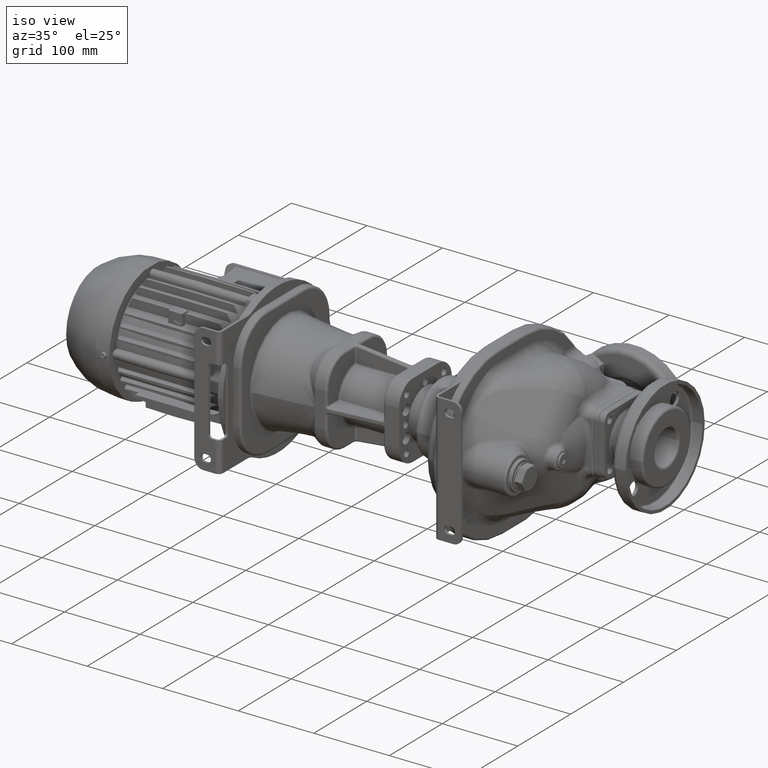
[diagram: clean part render]
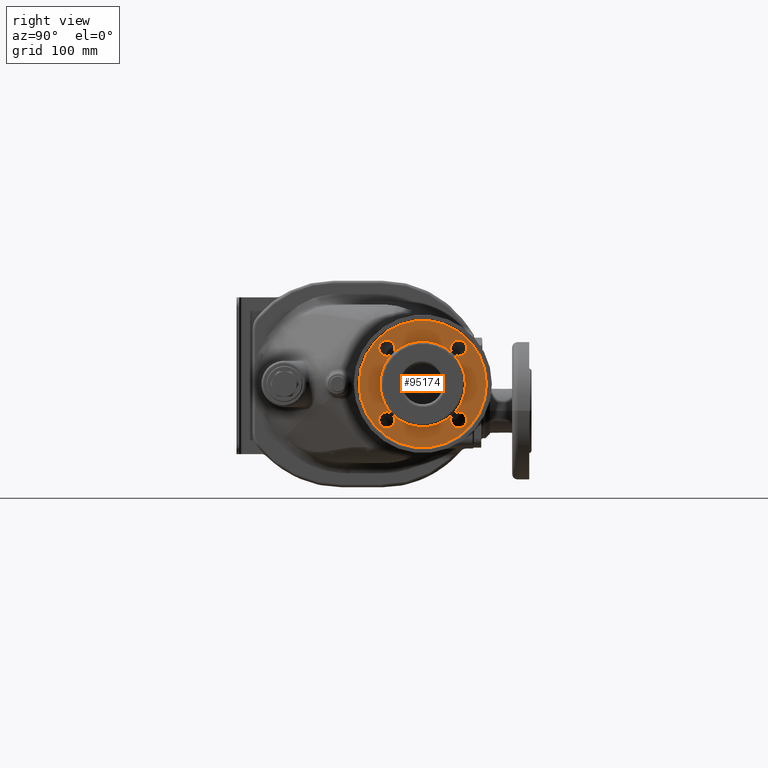
[diagram: tour spotlight — one face highlighted and labeled with its STEP entity id]
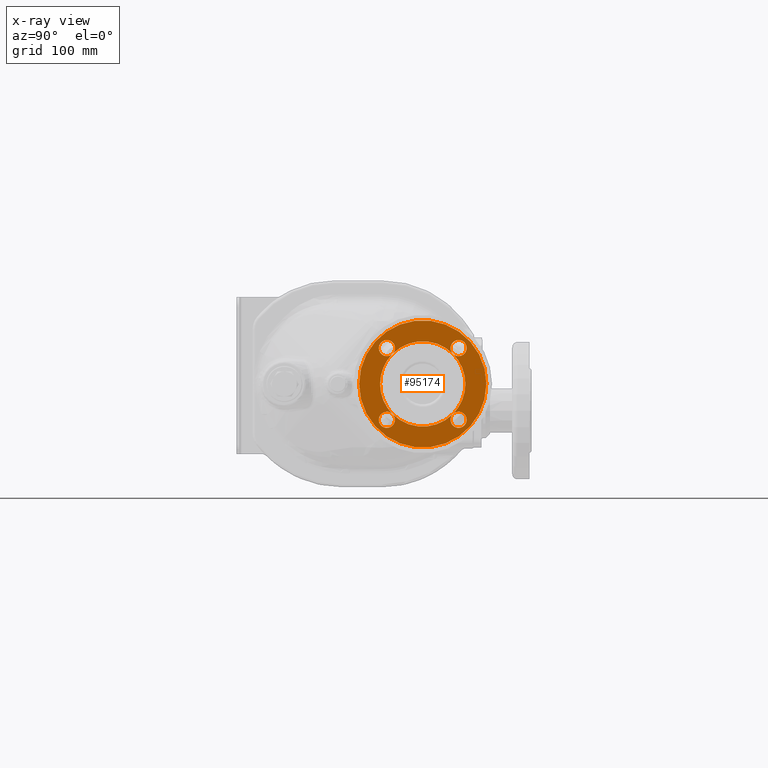
[diagram: x-ray of the same camera — body ghosted, this tour face saturated]
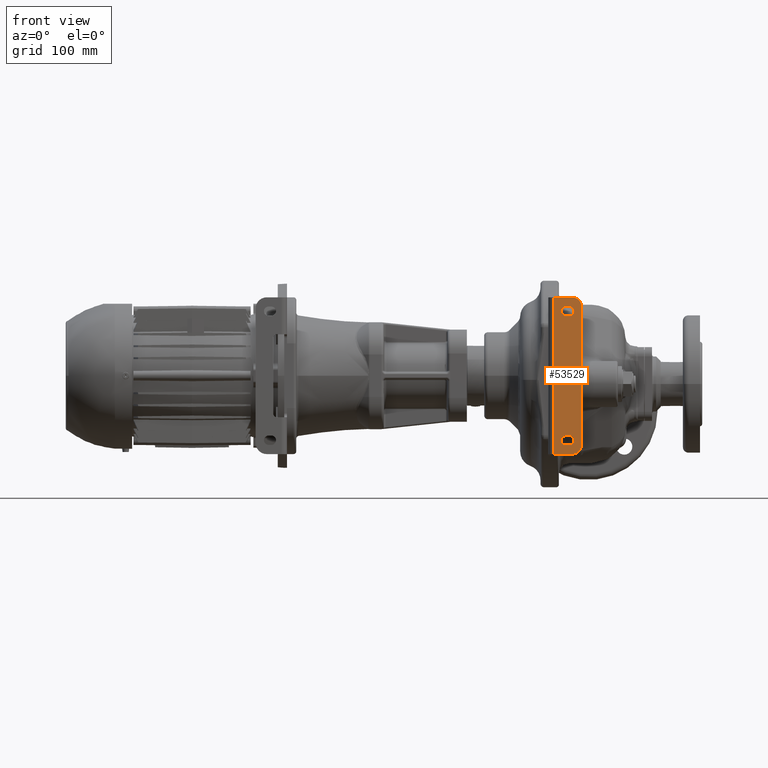
[diagram: tour spotlight — one face highlighted and labeled with its STEP entity id]
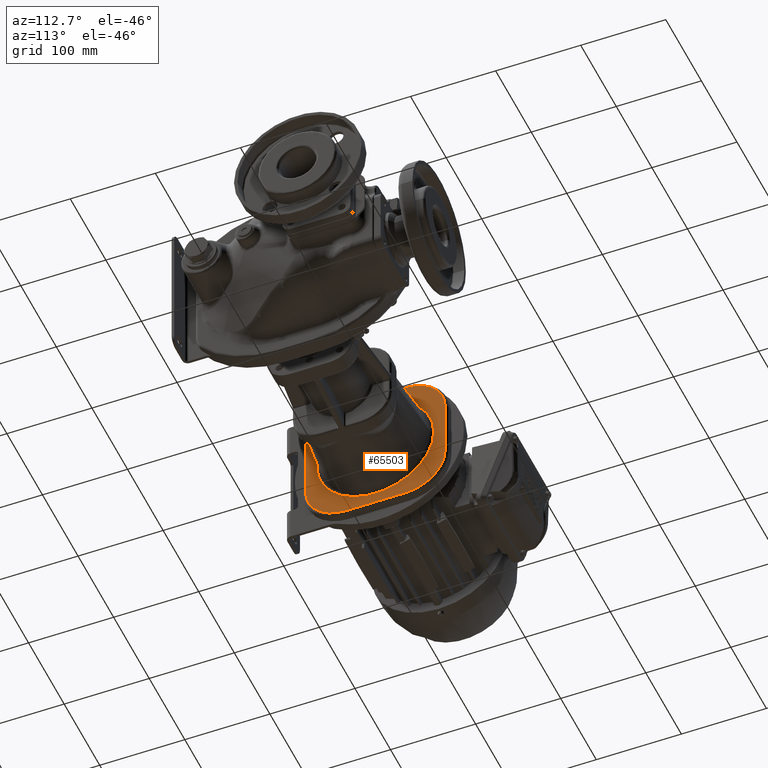
[diagram: tour spotlight — one face highlighted and labeled with its STEP entity id]
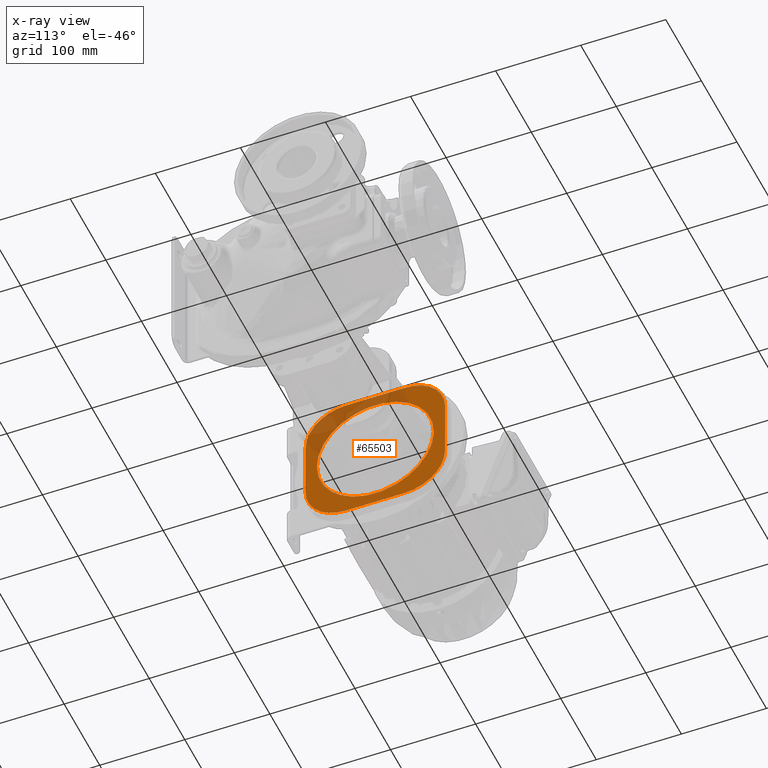
[diagram: x-ray of the same camera — body ghosted, this tour face saturated]
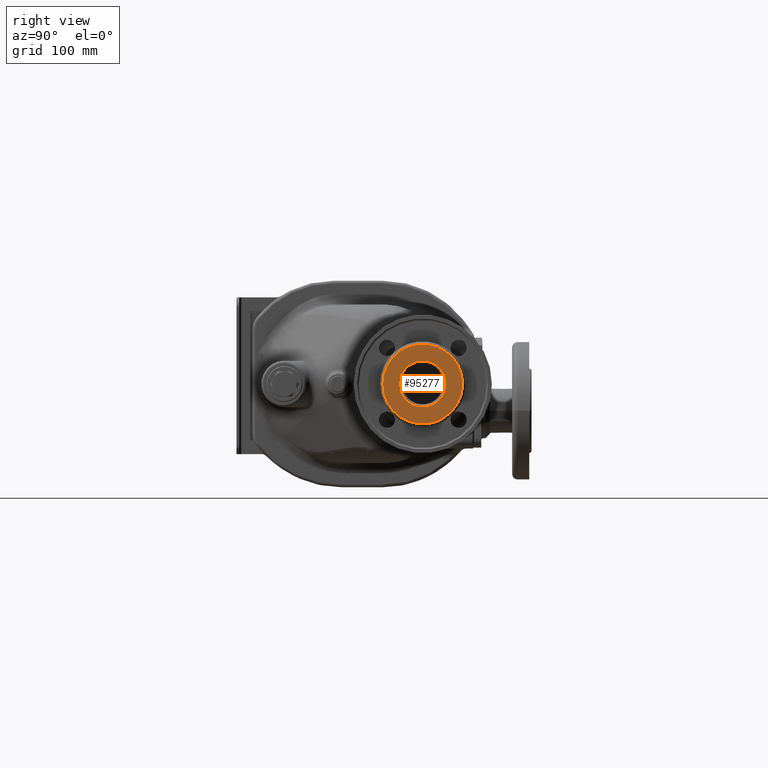
[diagram: tour spotlight — one face highlighted and labeled with its STEP entity id]
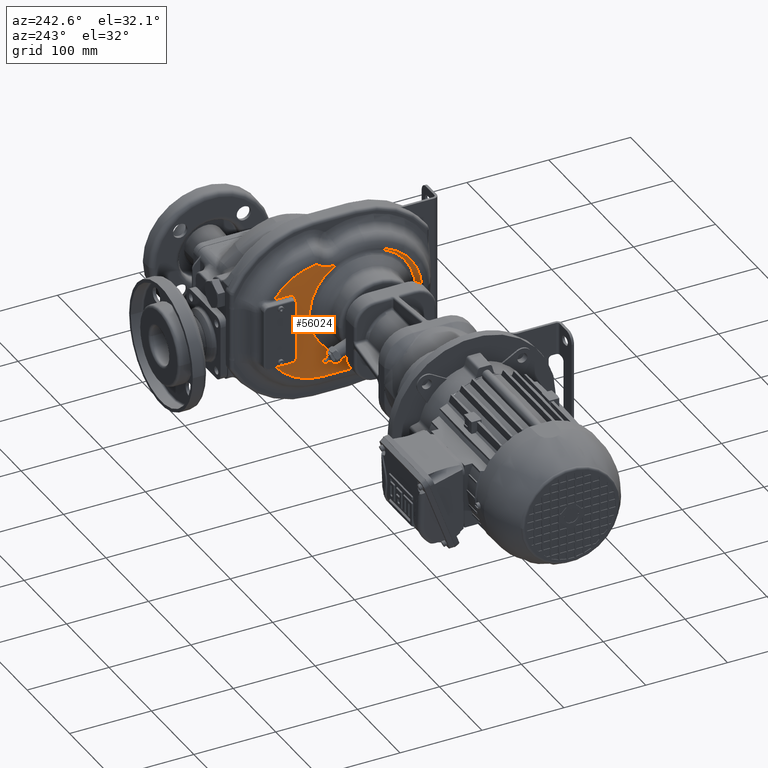
[diagram: tour spotlight — one face highlighted and labeled with its STEP entity id]
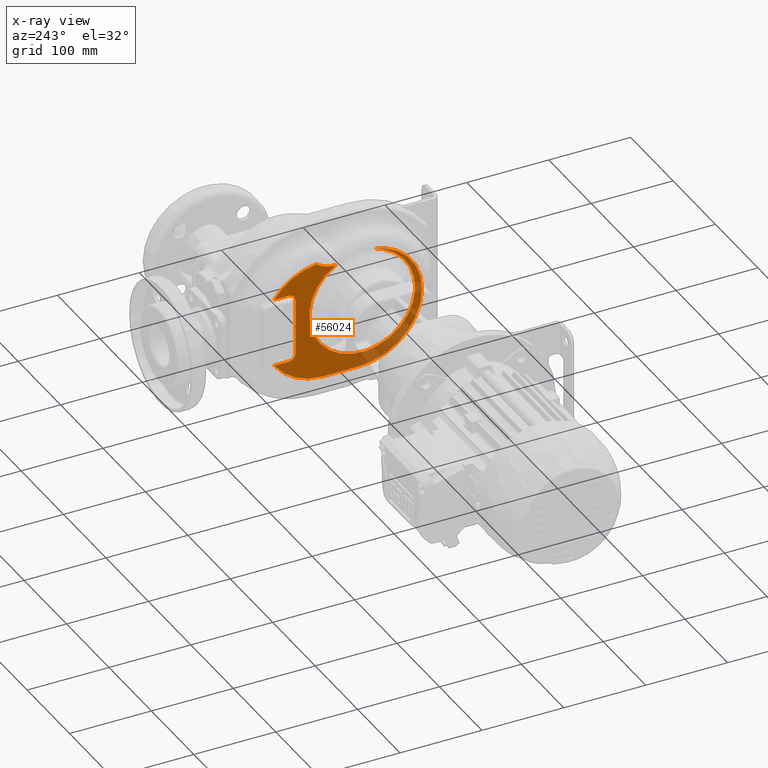
[diagram: x-ray of the same camera — body ghosted, this tour face saturated]
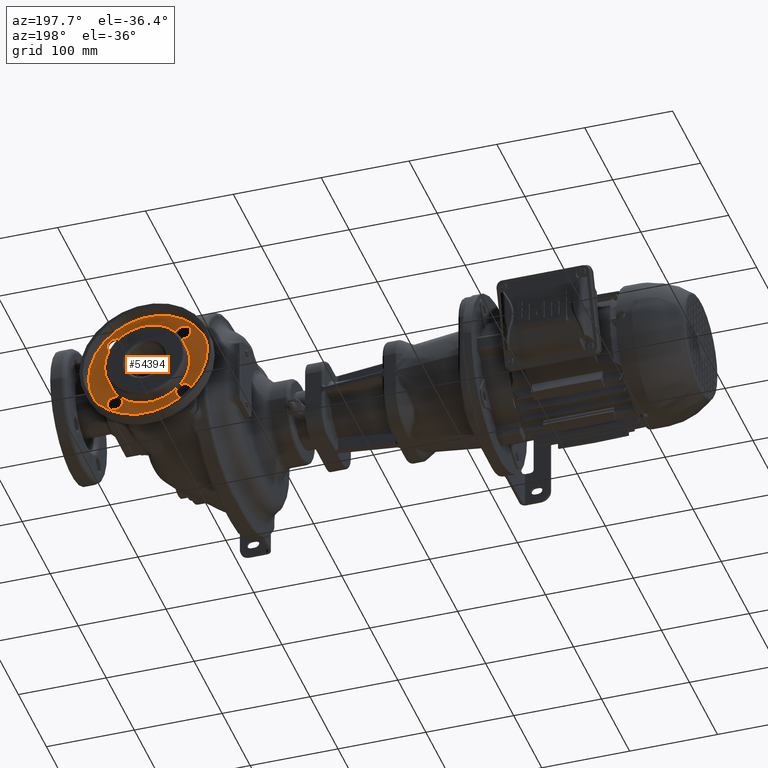
[diagram: tour spotlight — one face highlighted and labeled with its STEP entity id]
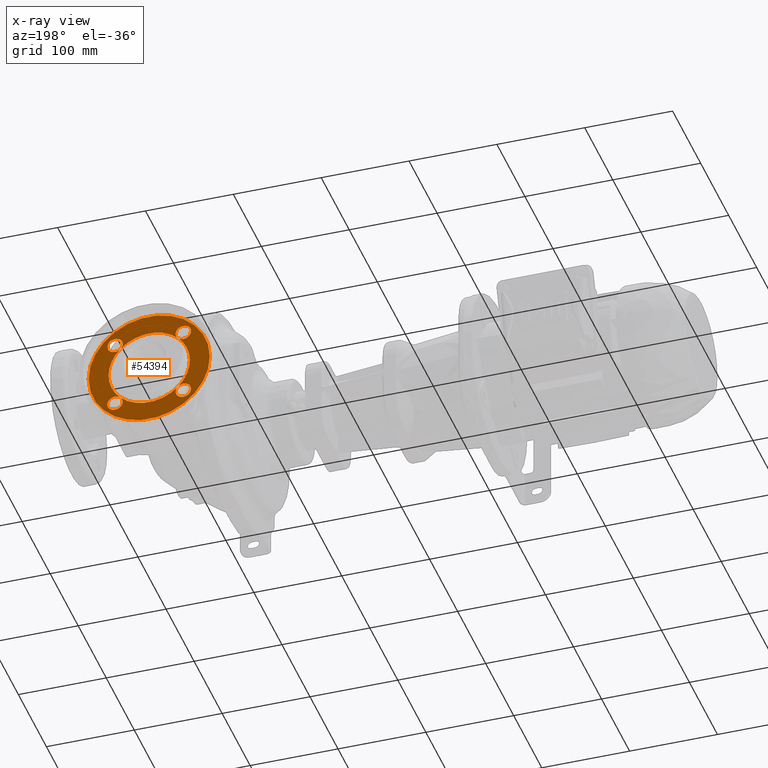
[diagram: x-ray of the same camera — body ghosted, this tour face saturated]
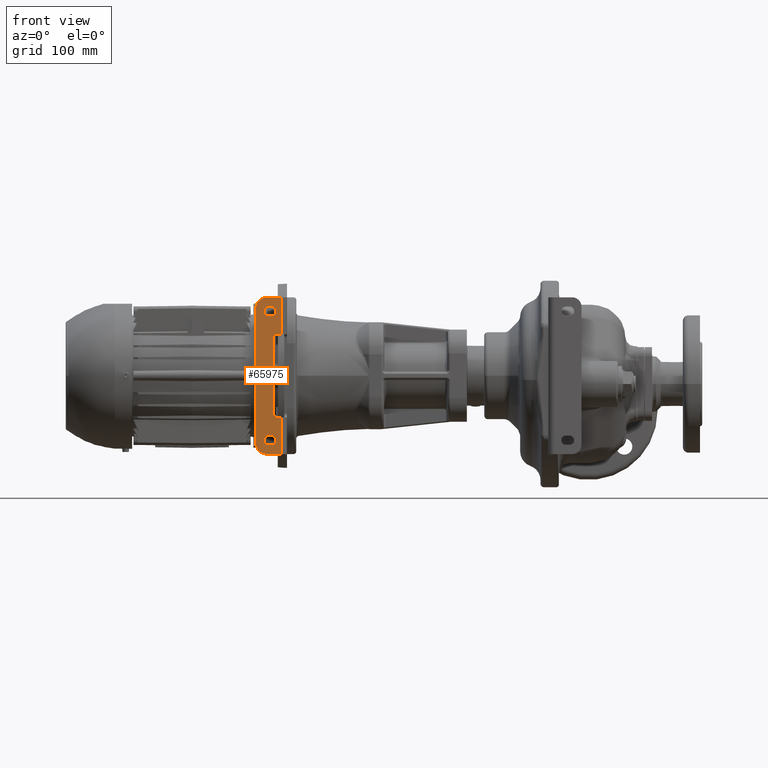
[diagram: tour spotlight — one face highlighted and labeled with its STEP entity id]
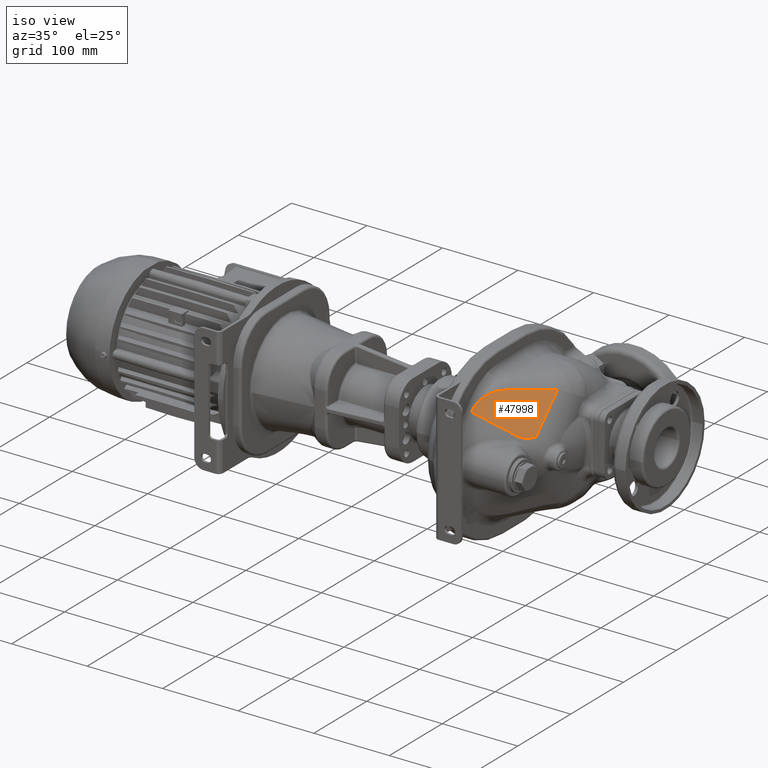
[diagram: tour spotlight — one face highlighted and labeled with its STEP entity id]
A machine part: a face-by-face anatomy tour. The part has 2235 B-rep faces; the first image is the clean iso view, then the 8 largest visible faces are spotlighted one at a time (largest first), each with its STEP entity span.

Face 1 — right view, entity #95174. An x-ray twin of the same camera follows (body ghosted, this face saturated) — the face is partly hidden behind the body. In plain terms, the highlighted planar face has unit normal (1, 0, 0).
Definition (entity closure, byte-faithful):
#38993=CARTESIAN_POINT('',(1.29E2,2.02E2,-9.E0));
#38994=DIRECTION('',(1.E0,0.E0,0.E0));
#38995=DIRECTION('',(0.E0,-1.E0,0.E0));
#38996=AXIS2_PLACEMENT_3D('',#38993,#38994,#38995);
#39008=CARTESIAN_POINT('',(1.29E2,2.02E2,-9.E0));
#39009=DIRECTION('',(-1.E0,0.E0,0.E0));
#39010=DIRECTION('',(0.E0,-1.E0,0.E0));
#39011=AXIS2_PLACEMENT_3D('',#39008,#39009,#39010);
#39013=CARTESIAN_POINT('',(1.29E2,2.408908729653E2,-4.789087296526E1));
#39014=DIRECTION('',(-1.E0,0.E0,0.E0));
#39015=DIRECTION('',(0.E0,-1.E0,0.E0));
#39016=AXIS2_PLACEMENT_3D('',#39013,#39014,#39015);
#39018=CARTESIAN_POINT('',(1.29E2,2.408908729653E2,-4.789087296526E1));
#39019=DIRECTION('',(-1.E0,0.E0,0.E0));
#39020=DIRECTION('',(0.E0,1.E0,0.E0));
#39021=AXIS2_PLACEMENT_3D('',#39018,#39019,#39020);
#39023=CARTESIAN_POINT('',(1.29E2,2.408908729653E2,-4.789087296526E1));
#39024=DIRECTION('',(-1.E0,0.E0,0.E0));
#39025=DIRECTION('',(0.E0,-7.071067811865E-1,7.071067811865E-1));
#39026=AXIS2_PLACEMENT_3D('',#39023,#39024,#39025);
#39028=CARTESIAN_POINT('',(1.29E2,2.408908729653E2,2.989087296526E1));
#39029=DIRECTION('',(-1.E0,0.E0,0.E0));
#39030=DIRECTION('',(0.E0,0.E0,-1.E0));
#39031=AXIS2_PLACEMENT_3D('',#39028,#39029,#39030);
#39033=CARTESIAN_POINT('',(1.29E2,2.408908729653E2,2.989087296526E1));
#39034=DIRECTION('',(-1.E0,0.E0,0.E0));
#39035=DIRECTION('',(0.E0,0.E0,1.E0));
#39036=AXIS2_PLACEMENT_3D('',#39033,#39034,#39035);
#39038=CARTESIAN_POINT('',(1.29E2,2.408908729653E2,2.989087296526E1));
#39039=DIRECTION('',(-1.E0,0.E0,0.E0));
#39040=DIRECTION('',(0.E0,-7.071067811865E-1,-7.071067811865E-1));
#39041=AXIS2_PLACEMENT_3D('',#39038,#39039,#39040);
#39043=CARTESIAN_POINT('',(1.29E2,1.631091270347E2,2.989087296526E1));
#39044=DIRECTION('',(-1.E0,0.E0,0.E0));
#39045=DIRECTION('',(0.E0,1.E0,0.E0));
#39046=AXIS2_PLACEMENT_3D('',#39043,#39044,#39045);
#39048=CARTESIAN_POINT('',(1.29E2,1.631091270347E2,2.989087296526E1));
#39049=DIRECTION('',(-1.E0,0.E0,0.E0));
#39050=DIRECTION('',(0.E0,-1.E0,0.E0));
#39051=AXIS2_PLACEMENT_3D('',#39048,#39049,#39050);
#39053=CARTESIAN_POINT('',(1.29E2,1.631091270347E2,2.989087296526E1));
#39054=DIRECTION('',(-1.E0,0.E0,0.E0));
#39055=DIRECTION('',(0.E0,7.071067811865E-1,-7.071067811865E-1));
#39056=AXIS2_PLACEMENT_3D('',#39053,#39054,#39055);
#39058=CARTESIAN_POINT('',(1.29E2,1.631091270347E2,-4.789087296526E1));
#39059=DIRECTION('',(-1.E0,0.E0,0.E0));
#39060=DIRECTION('',(0.E0,0.E0,1.E0));
#39061=AXIS2_PLACEMENT_3D('',#39058,#39059,#39060);
#39063=CARTESIAN_POINT('',(1.29E2,1.631091270347E2,-4.789087296526E1));
#39064=DIRECTION('',(-1.E0,0.E0,0.E0));
#39065=DIRECTION('',(0.E0,0.E0,-1.E0));
#39066=AXIS2_PLACEMENT_3D('',#39063,#39064,#39065);
#39068=CARTESIAN_POINT('',(1.29E2,1.631091270347E2,-4.789087296526E1));
#39069=DIRECTION('',(-1.E0,0.E0,0.E0));
#39070=DIRECTION('',(0.E0,7.071067811865E-1,7.071067811865E-1));
#39071=AXIS2_PLACEMENT_3D('',#39068,#39069,#39070);
#39081=CARTESIAN_POINT('',(1.29E2,2.02E2,-9.E0));
#39082=DIRECTION('',(1.E0,0.E0,0.E0));
#39083=DIRECTION('',(0.E0,-7.071067811865E-1,-7.071067811865E-1));
#39084=AXIS2_PLACEMENT_3D('',#39081,#39082,#39083);
#39086=CARTESIAN_POINT('',(1.29E2,2.02E2,-9.E0));
#39087=DIRECTION('',(1.E0,0.E0,0.E0));
#39088=DIRECTION('',(0.E0,-1.E0,0.E0));
#39089=AXIS2_PLACEMENT_3D('',#39086,#39087,#39088);
#39096=CARTESIAN_POINT('',(1.29E2,2.02E2,-9.E0));
#39097=DIRECTION('',(1.E0,0.E0,0.E0));
#39098=DIRECTION('',(0.E0,7.071067811865E-1,-7.071067811865E-1));
#39099=AXIS2_PLACEMENT_3D('',#39096,#39097,#39098);
#39101=CARTESIAN_POINT('',(1.29E2,2.02E2,-9.E0));
#39102=DIRECTION('',(1.E0,0.E0,0.E0));
#39103=DIRECTION('',(0.E0,7.071067811865E-1,7.071067811865E-1));
#39104=AXIS2_PLACEMENT_3D('',#39101,#39102,#39103);
#39106=CARTESIAN_POINT('',(1.29E2,2.02E2,-9.E0));
#39107=DIRECTION('',(1.E0,0.E0,0.E0));
#39108=DIRECTION('',(0.E0,1.E0,0.E0));
#39109=AXIS2_PLACEMENT_3D('',#39106,#39107,#39108);
#39124=CARTESIAN_POINT('',(1.29E2,2.02E2,-9.E0));
#39125=DIRECTION('',(1.E0,0.E0,0.E0));
#39126=DIRECTION('',(0.E0,-7.071067811865E-1,7.071067811865E-1));
#39127=AXIS2_PLACEMENT_3D('',#39124,#39125,#39126);
#40469=CARTESIAN_POINT('',(1.29E2,1.33E2,-9.E0));
#40471=VERTEX_POINT('',#40469);
#40489=CARTESIAN_POINT('',(1.29E2,2.71E2,-9.E0));
#40491=VERTEX_POINT('',#40489);
#40517=CARTESIAN_POINT('',(1.29E2,1.5575E2,-9.E0));
#40518=VERTEX_POINT('',#40517);
#40519=CARTESIAN_POINT('',(1.29E2,2.4825E2,-9.E0));
#40520=VERTEX_POINT('',#40519);
#40521=CARTESIAN_POINT('',(1.29E2,2.408908729653E2,2.114087296526E1));
#40522=CARTESIAN_POINT('',(1.29E2,2.347036886299E2,2.370368862988E1));
#40523=VERTEX_POINT('',#40521);
#40524=VERTEX_POINT('',#40522);
#40525=CARTESIAN_POINT('',(1.29E2,2.408908729653E2,3.864087296526E1));
#40526=VERTEX_POINT('',#40525);
#40531=CARTESIAN_POINT('',(1.29E2,1.718591270347E2,2.989087296526E1));
#40532=CARTESIAN_POINT('',(1.29E2,1.692963113701E2,2.370368862988E1));
#40533=VERTEX_POINT('',#40531);
#40534=VERTEX_POINT('',#40532);
#40535=CARTESIAN_POINT('',(1.29E2,1.543591270347E2,2.989087296526E1));
#40536=VERTEX_POINT('',#40535);
#40541=CARTESIAN_POINT('',(1.29E2,1.631091270347E2,-3.914087296526E1));
#40542=CARTESIAN_POINT('',(1.29E2,1.692963113701E2,-4.170368862988E1));
#40543=VERTEX_POINT('',#40541);
#40544=VERTEX_POINT('',#40542);
#40545=CARTESIAN_POINT('',(1.29E2,1.631091270347E2,-5.664087296526E1));
#40546=VERTEX_POINT('',#40545);
#40551=CARTESIAN_POINT('',(1.29E2,2.321408729653E2,-4.789087296526E1));
#40552=CARTESIAN_POINT('',(1.29E2,2.347036886299E2,-4.170368862988E1));
#40553=VERTEX_POINT('',#40551);
#40554=VERTEX_POINT('',#40552);
#40555=CARTESIAN_POINT('',(1.29E2,2.496408729653E2,-4.789087296526E1));
#40556=VERTEX_POINT('',#40555);
#95127=CARTESIAN_POINT('',(1.29E2,2.02E2,-9.E0));
#95128=DIRECTION('',(1.E0,0.E0,0.E0));
#95129=DIRECTION('',(0.E0,1.E0,0.E0));
#95130=AXIS2_PLACEMENT_3D('',#95127,#95128,#95129);
#95131=PLANE('',#95130);
#95132=ORIENTED_EDGE('',*,*,#95106,.F.);
#95133=ORIENTED_EDGE('',*,*,#95122,.T.);
#95134=EDGE_LOOP('',(#95132,#95133));
#95135=FACE_OUTER_BOUND('',#95134,.F.);
#95137=ORIENTED_EDGE('',*,*,#95136,.F.);
#95139=ORIENTED_EDGE('',*,*,#95138,.F.);
#95141=ORIENTED_EDGE('',*,*,#95140,.F.);
#95143=ORIENTED_EDGE('',*,*,#95142,.T.);
#95145=ORIENTED_EDGE('',*,*,#95144,.T.);
#95147=ORIENTED_EDGE('',*,*,#95146,.F.);
#95149=ORIENTED_EDGE('',*,*,#95148,.F.);
#95151=ORIENTED_EDGE('',*,*,#95150,.F.);
#95153=ORIENTED_EDGE('',*,*,#95152,.T.);
#95155=ORIENTED_EDGE('',*,*,#95154,.F.);
#95157=ORIENTED_EDGE('',*,*,#95156,.F.);
#95159=ORIENTED_EDGE('',*,*,#95158,.F.);
#95161=ORIENTED_EDGE('',*,*,#95160,.T.);
#95163=ORIENTED_EDGE('',*,*,#95162,.T.);
#95165=ORIENTED_EDGE('',*,*,#95164,.F.);
#95167=ORIENTED_EDGE('',*,*,#95166,.F.);
#95169=ORIENTED_EDGE('',*,*,#95168,.F.);
#95171=ORIENTED_EDGE('',*,*,#95170,.T.);
#95172=EDGE_LOOP('',(#95137,#95139,#95141,#95143,#95145,#95147,#95149,#95151,
#95153,#95155,#95157,#95159,#95161,#95163,#95165,#95167,#95169,#95171));
#95173=FACE_BOUND('',#95172,.F.);
#95174=ADVANCED_FACE('',(#95135,#95173),#95131,.T.);
#38997=CIRCLE('',#38996,6.9E1);
#39012=CIRCLE('',#39011,6.9E1);
#39017=CIRCLE('',#39016,8.75E0);
#39022=CIRCLE('',#39021,8.75E0);
#39027=CIRCLE('',#39026,8.75E0);
#39032=CIRCLE('',#39031,8.75E0);
#39037=CIRCLE('',#39036,8.75E0);
#39042=CIRCLE('',#39041,8.75E0);
#39047=CIRCLE('',#39046,8.75E0);
#39052=CIRCLE('',#39051,8.75E0);
#39057=CIRCLE('',#39056,8.75E0);
#39062=CIRCLE('',#39061,8.75E0);
#39067=CIRCLE('',#39066,8.75E0);
#39072=CIRCLE('',#39071,8.75E0);
#39085=CIRCLE('',#39084,4.625E1);
#39090=CIRCLE('',#39089,4.625E1);
#39100=CIRCLE('',#39099,4.625E1);
#39105=CIRCLE('',#39104,4.625E1);
#39110=CIRCLE('',#39109,4.625E1);
#39128=CIRCLE('',#39127,4.625E1);
#95106=EDGE_CURVE('',#40471,#40491,#38997,.T.);
#95122=EDGE_CURVE('',#40471,#40491,#39012,.T.);
#95136=EDGE_CURVE('',#40553,#40554,#39017,.T.);
#95138=EDGE_CURVE('',#40556,#40553,#39022,.T.);
#95140=EDGE_CURVE('',#40554,#40556,#39027,.T.);
#95142=EDGE_CURVE('',#40554,#40520,#39100,.T.);
#95144=EDGE_CURVE('',#40520,#40524,#39110,.T.);
#95146=EDGE_CURVE('',#40523,#40524,#39032,.T.);
#95148=EDGE_CURVE('',#40526,#40523,#39037,.T.);
#95150=EDGE_CURVE('',#40524,#40526,#39042,.T.);
#95152=EDGE_CURVE('',#40524,#40534,#39105,.T.);
#95154=EDGE_CURVE('',#40533,#40534,#39047,.T.);
#95156=EDGE_CURVE('',#40536,#40533,#39052,.T.);
#95158=EDGE_CURVE('',#40534,#40536,#39057,.T.);
#95160=EDGE_CURVE('',#40534,#40518,#39128,.T.);
#95162=EDGE_CURVE('',#40518,#40544,#39090,.T.);
#95164=EDGE_CURVE('',#40543,#40544,#39062,.T.);
#95166=EDGE_CURVE('',#40546,#40543,#39067,.T.);
#95168=EDGE_CURVE('',#40544,#40546,#39072,.T.);
#95170=EDGE_CURVE('',#40544,#40554,#39085,.T.);

Face 2 — front view, entity #53529. In plain terms, the highlighted planar face has unit normal (0, -1, 0).
Definition (entity closure, byte-faithful):
#6403=DIRECTION('',(0.E0,0.E0,-1.E0));
#6404=VECTOR('',#6403,1.7E2);
#6405=CARTESIAN_POINT('',(-1.47E1,0.E0,8.5E1));
#6406=LINE('',#6405,#6404);
#6421=CARTESIAN_POINT('',(5.E0,1.136868377216E-13,7.5E1));
#6422=DIRECTION('',(0.E0,-1.E0,0.E0));
#6423=DIRECTION('',(1.E0,0.E0,0.E0));
#6424=AXIS2_PLACEMENT_3D('',#6421,#6422,#6423);
#6426=DIRECTION('',(0.E0,0.E0,1.E0));
#6427=VECTOR('',#6426,1.5E2);
#6428=CARTESIAN_POINT('',(1.5E1,0.E0,-7.5E1));
#6429=LINE('',#6428,#6427);
#6430=CARTESIAN_POINT('',(5.E0,-1.136868377216E-13,-7.5E1));
#6431=DIRECTION('',(0.E0,-1.E0,0.E0));
#6432=DIRECTION('',(0.E0,0.E0,-1.E0));
#6433=AXIS2_PLACEMENT_3D('',#6430,#6431,#6432);
#6435=DIRECTION('',(1.E0,0.E0,0.E0));
#6436=VECTOR('',#6435,1.97E1);
#6437=CARTESIAN_POINT('',(-1.47E1,0.E0,-8.5E1));
#6438=LINE('',#6437,#6436);
#6439=DIRECTION('',(-1.E0,0.E0,0.E0));
#6440=VECTOR('',#6439,1.97E1);
#6441=CARTESIAN_POINT('',(5.E0,1.110223024625E-14,8.5E1));
#6442=LINE('',#6441,#6440);
#6443=DIRECTION('',(1.E0,0.E0,0.E0));
#6444=VECTOR('',#6443,4.E0);
#6445=CARTESIAN_POINT('',(-2.E0,0.E0,-7.5E1));
#6446=LINE('',#6445,#6444);
#6447=CARTESIAN_POINT('',(2.E0,0.E0,-7.E1));
#6448=DIRECTION('',(0.E0,1.E0,0.E0));
#6449=DIRECTION('',(0.E0,0.E0,1.E0));
#6450=AXIS2_PLACEMENT_3D('',#6447,#6448,#6449);
#6452=DIRECTION('',(-1.E0,0.E0,0.E0));
#6453=VECTOR('',#6452,4.E0);
#6454=CARTESIAN_POINT('',(2.E0,0.E0,-6.5E1));
#6455=LINE('',#6454,#6453);
#6456=CARTESIAN_POINT('',(-2.E0,0.E0,-7.E1));
#6457=DIRECTION('',(0.E0,1.E0,0.E0));
#6458=DIRECTION('',(0.E0,0.E0,-1.E0));
#6459=AXIS2_PLACEMENT_3D('',#6456,#6457,#6458);
#6461=CARTESIAN_POINT('',(-2.E0,1.532107773983E-14,7.E1));
#6462=DIRECTION('',(0.E0,1.E0,0.E0));
#6463=DIRECTION('',(0.E0,0.E0,-1.E0));
#6464=AXIS2_PLACEMENT_3D('',#6461,#6462,#6463);
#6466=DIRECTION('',(1.E0,0.E0,0.E0));
#6467=VECTOR('',#6466,4.E0);
#6468=CARTESIAN_POINT('',(-2.E0,0.E0,6.5E1));
#6469=LINE('',#6468,#6467);
#6470=CARTESIAN_POINT('',(2.E0,1.443289932013E-14,7.E1));
#6471=DIRECTION('',(0.E0,1.E0,0.E0));
#6472=DIRECTION('',(-2.188471626141E-13,0.E0,1.E0));
#6473=AXIS2_PLACEMENT_3D('',#6470,#6471,#6472);
#6475=DIRECTION('',(-1.E0,0.E0,0.E0));
#6476=VECTOR('',#6475,4.E0);
#6477=CARTESIAN_POINT('',(2.E0,1.554747616054E-14,7.5E1));
#6478=LINE('',#6477,#6476);
#39832=CARTESIAN_POINT('',(1.5E1,1.142991611212E-13,7.5E1));
#39833=CARTESIAN_POINT('',(5.E0,1.136868377216E-13,8.5E1));
#39834=VERTEX_POINT('',#39832);
#39835=VERTEX_POINT('',#39833);
#39840=CARTESIAN_POINT('',(5.E0,-1.136868377216E-13,-8.5E1));
#39841=CARTESIAN_POINT('',(1.5E1,-1.130745143220E-13,-7.5E1));
#39842=VERTEX_POINT('',#39840);
#39843=VERTEX_POINT('',#39841);
#39848=CARTESIAN_POINT('',(-1.47E1,0.E0,-8.5E1));
#39849=VERTEX_POINT('',#39848);
#39850=CARTESIAN_POINT('',(-1.47E1,0.E0,8.5E1));
#39851=VERTEX_POINT('',#39850);
#39856=CARTESIAN_POINT('',(-2.E0,0.E0,-7.5E1));
#39857=CARTESIAN_POINT('',(2.E0,0.E0,-7.5E1));
#39858=VERTEX_POINT('',#39856);
#39859=VERTEX_POINT('',#39857);
#39860=CARTESIAN_POINT('',(2.E0,0.E0,-6.5E1));
#39861=VERTEX_POINT('',#39860);
#39862=CARTESIAN_POINT('',(-2.E0,0.E0,-6.5E1));
#39863=VERTEX_POINT('',#39862);
#39864=CARTESIAN_POINT('',(-2.E0,1.532107773983E-14,6.5E1));
#39865=CARTESIAN_POINT('',(-2.E0,1.532107773983E-14,7.5E1));
#39866=VERTEX_POINT('',#39864);
#39867=VERTEX_POINT('',#39865);
#39868=CARTESIAN_POINT('',(2.E0,1.014874458981E-14,6.5E1));
#39869=VERTEX_POINT('',#39868);
#39870=CARTESIAN_POINT('',(1.999999999999E0,1.443289932013E-14,7.5E1));
#39871=VERTEX_POINT('',#39870);
#53491=CARTESIAN_POINT('',(-2.1E1,0.E0,-8.5E1));
#53492=DIRECTION('',(0.E0,-1.E0,0.E0));
#53493=DIRECTION('',(0.E0,0.E0,-1.E0));
#53494=AXIS2_PLACEMENT_3D('',#53491,#53492,#53493);
#53495=PLANE('',#53494);
#53497=ORIENTED_EDGE('',*,*,#53496,.F.);
#53499=ORIENTED_EDGE('',*,*,#53498,.F.);
#53501=ORIENTED_EDGE('',*,*,#53500,.F.);
#53503=ORIENTED_EDGE('',*,*,#53502,.F.);
#53504=ORIENTED_EDGE('',*,*,#53482,.F.);
#53506=ORIENTED_EDGE('',*,*,#53505,.F.);
#53507=EDGE_LOOP('',(#53497,#53499,#53501,#53503,#53504,#53506));
#53508=FACE_OUTER_BOUND('',#53507,.F.);
#53510=ORIENTED_EDGE('',*,*,#53509,.T.);
#53512=ORIENTED_EDGE('',*,*,#53511,.F.);
#53514=ORIENTED_EDGE('',*,*,#53513,.T.);
#53516=ORIENTED_EDGE('',*,*,#53515,.F.);
#53517=EDGE_LOOP('',(#53510,#53512,#53514,#53516));
#53518=FACE_BOUND('',#53517,.F.);
#53520=ORIENTED_EDGE('',*,*,#53519,.F.);
#53522=ORIENTED_EDGE('',*,*,#53521,.T.);
#53524=ORIENTED_EDGE('',*,*,#53523,.F.);
#53526=ORIENTED_EDGE('',*,*,#53525,.T.);
#53527=EDGE_LOOP('',(#53520,#53522,#53524,#53526));
#53528=FACE_BOUND('',#53527,.F.);
#53529=ADVANCED_FACE('',(#53508,#53518,#53528),#53495,.T.);
#6425=CIRCLE('',#6424,1.E1);
#6434=CIRCLE('',#6433,1.E1);
#6451=CIRCLE('',#6450,5.E0);
#6460=CIRCLE('',#6459,5.E0);
#6465=CIRCLE('',#6464,5.E0);
#6474=CIRCLE('',#6473,5.E0);
#53482=EDGE_CURVE('',#39851,#39849,#6406,.T.);
#53496=EDGE_CURVE('',#39834,#39835,#6425,.T.);
#53498=EDGE_CURVE('',#39843,#39834,#6429,.T.);
#53500=EDGE_CURVE('',#39842,#39843,#6434,.T.);
#53502=EDGE_CURVE('',#39849,#39842,#6438,.T.);
#53505=EDGE_CURVE('',#39835,#39851,#6442,.T.);
#53509=EDGE_CURVE('',#39858,#39859,#6446,.T.);
#53511=EDGE_CURVE('',#39861,#39859,#6451,.T.);
#53513=EDGE_CURVE('',#39861,#39863,#6455,.T.);
#53515=EDGE_CURVE('',#39858,#39863,#6460,.T.);
#53519=EDGE_CURVE('',#39866,#39867,#6465,.T.);
#53521=EDGE_CURVE('',#39866,#39869,#6469,.T.);
#53523=EDGE_CURVE('',#39871,#39869,#6474,.T.);
#53525=EDGE_CURVE('',#39871,#39867,#6478,.T.);

Face 3 — auxiliary view, entity #65503. An x-ray twin of the same camera follows (body ghosted, this face saturated) — the face is partly hidden behind the body. In plain terms, the highlighted planar face has unit normal (1, 0, 0).
Definition (entity closure, byte-faithful):
#12767=DIRECTION('',(0.E0,-1.E0,0.E0));
#12768=VECTOR('',#12767,7.E1);
#12769=CARTESIAN_POINT('',(-2.943E2,1.45E2,-8.2E1));
#12770=LINE('',#12769,#12768);
#12771=CARTESIAN_POINT('',(-2.943E2,7.5E1,-3.5E1));
#12772=DIRECTION('',(-1.E0,0.E0,0.E0));
#12773=DIRECTION('',(0.E0,0.E0,-1.E0));
#12774=AXIS2_PLACEMENT_3D('',#12771,#12772,#12773);
#12776=DIRECTION('',(0.E0,0.E0,1.E0));
#12777=VECTOR('',#12776,7.E1);
#12778=CARTESIAN_POINT('',(-2.943E2,2.8E1,-3.5E1));
#12779=LINE('',#12778,#12777);
#12780=CARTESIAN_POINT('',(-2.943E2,7.5E1,3.5E1));
#12781=DIRECTION('',(-1.E0,0.E0,0.E0));
#12782=DIRECTION('',(0.E0,-1.E0,0.E0));
#12783=AXIS2_PLACEMENT_3D('',#12780,#12781,#12782);
#12785=DIRECTION('',(0.E0,1.E0,0.E0));
#12786=VECTOR('',#12785,7.E1);
#12787=CARTESIAN_POINT('',(-2.943E2,7.5E1,8.2E1));
#12788=LINE('',#12787,#12786);
#12789=CARTESIAN_POINT('',(-2.943E2,1.45E2,3.5E1));
#12790=DIRECTION('',(-1.E0,0.E0,0.E0));
#12791=DIRECTION('',(0.E0,0.E0,1.E0));
#12792=AXIS2_PLACEMENT_3D('',#12789,#12790,#12791);
#12794=DIRECTION('',(0.E0,0.E0,-1.E0));
#12795=VECTOR('',#12794,7.E1);
#12796=CARTESIAN_POINT('',(-2.943E2,1.92E2,3.5E1));
#12797=LINE('',#12796,#12795);
#12798=CARTESIAN_POINT('',(-2.943E2,1.45E2,-3.5E1));
#12799=DIRECTION('',(-1.E0,0.E0,0.E0));
#12800=DIRECTION('',(0.E0,1.E0,0.E0));
#12801=AXIS2_PLACEMENT_3D('',#12798,#12799,#12800);
#12803=CARTESIAN_POINT('',(-2.943E2,1.1E2,0.E0));
#12804=DIRECTION('',(-1.E0,0.E0,0.E0));
#12805=DIRECTION('',(0.E0,-1.E0,0.E0));
#12806=AXIS2_PLACEMENT_3D('',#12803,#12804,#12805);
#12808=CARTESIAN_POINT('',(-2.943E2,1.1E2,0.E0));
#12809=DIRECTION('',(-1.E0,0.E0,0.E0));
#12810=DIRECTION('',(0.E0,1.E0,0.E0));
#12811=AXIS2_PLACEMENT_3D('',#12808,#12809,#12810);
#41699=CARTESIAN_POINT('',(-2.943E2,4.127124646929E1,0.E0));
#41700=CARTESIAN_POINT('',(-2.943E2,1.787287535307E2,1.683370960415E-14));
#41701=VERTEX_POINT('',#41699);
#41702=VERTEX_POINT('',#41700);
#41705=CARTESIAN_POINT('',(-2.943E2,1.45E2,-8.2E1));
#41706=CARTESIAN_POINT('',(-2.943E2,7.5E1,-8.2E1));
#41707=VERTEX_POINT('',#41705);
#41708=VERTEX_POINT('',#41706);
#41713=CARTESIAN_POINT('',(-2.943E2,1.92E2,-3.5E1));
#41714=VERTEX_POINT('',#41713);
#41717=CARTESIAN_POINT('',(-2.943E2,1.92E2,3.5E1));
#41718=VERTEX_POINT('',#41717);
#41721=CARTESIAN_POINT('',(-2.943E2,1.45E2,8.2E1));
#41722=VERTEX_POINT('',#41721);
#41725=CARTESIAN_POINT('',(-2.943E2,7.5E1,8.2E1));
#41726=VERTEX_POINT('',#41725);
#41729=CARTESIAN_POINT('',(-2.943E2,2.8E1,3.5E1));
#41730=VERTEX_POINT('',#41729);
#41733=CARTESIAN_POINT('',(-2.943E2,2.8E1,-3.5E1));
#41734=VERTEX_POINT('',#41733);
#65476=CARTESIAN_POINT('',(-2.943E2,1.1E2,0.E0));
#65477=DIRECTION('',(1.E0,0.E0,0.E0));
#65478=DIRECTION('',(0.E0,-1.E0,0.E0));
#65479=AXIS2_PLACEMENT_3D('',#65476,#65477,#65478);
#65480=PLANE('',#65479);
#65482=ORIENTED_EDGE('',*,*,#65481,.T.);
#65484=ORIENTED_EDGE('',*,*,#65483,.T.);
#65486=ORIENTED_EDGE('',*,*,#65485,.T.);
#65488=ORIENTED_EDGE('',*,*,#65487,.T.);
#65490=ORIENTED_EDGE('',*,*,#65489,.T.);
#65492=ORIENTED_EDGE('',*,*,#65491,.T.);
#65494=ORIENTED_EDGE('',*,*,#65493,.T.);
#65496=ORIENTED_EDGE('',*,*,#65495,.T.);
#65497=EDGE_LOOP('',(#65482,#65484,#65486,#65488,#65490,#65492,#65494,#65496));
#65498=FACE_OUTER_BOUND('',#65497,.F.);
#65499=ORIENTED_EDGE('',*,*,#65377,.F.);
#65500=ORIENTED_EDGE('',*,*,#65364,.F.);
#65501=EDGE_LOOP('',(#65499,#65500));
#65502=FACE_BOUND('',#65501,.F.);
#65503=ADVANCED_FACE('',(#65498,#65502),#65480,.T.);
#12775=CIRCLE('',#12774,4.7E1);
#12784=CIRCLE('',#12783,4.7E1);
#12793=CIRCLE('',#12792,4.7E1);
#12802=CIRCLE('',#12801,4.7E1);
#12807=CIRCLE('',#12806,6.872875353071E1);
#12812=CIRCLE('',#12811,6.872875353071E1);
#65364=EDGE_CURVE('',#41702,#41701,#12812,.T.);
#65377=EDGE_CURVE('',#41701,#41702,#12807,.T.);
#65481=EDGE_CURVE('',#41707,#41708,#12770,.T.);
#65483=EDGE_CURVE('',#41708,#41734,#12775,.T.);
#65485=EDGE_CURVE('',#41734,#41730,#12779,.T.);
#65487=EDGE_CURVE('',#41730,#41726,#12784,.T.);
#65489=EDGE_CURVE('',#41726,#41722,#12788,.T.);
#65491=EDGE_CURVE('',#41722,#41718,#12793,.T.);
#65493=EDGE_CURVE('',#41718,#41714,#12797,.T.);
#65495=EDGE_CURVE('',#41714,#41707,#12802,.T.);

Face 4 — right view, entity #95277. In plain terms, the highlighted planar face has unit normal (1, 0, 0).
Definition (entity closure, byte-faithful):
#39139=CARTESIAN_POINT('',(1.46E2,2.02E2,-9.E0));
#39140=DIRECTION('',(-1.E0,0.E0,0.E0));
#39141=DIRECTION('',(0.E0,-1.E0,0.E0));
#39142=AXIS2_PLACEMENT_3D('',#39139,#39140,#39141);
#39144=CARTESIAN_POINT('',(1.46E2,2.02E2,-9.E0));
#39145=DIRECTION('',(1.E0,0.E0,0.E0));
#39146=DIRECTION('',(0.E0,-1.E0,0.E0));
#39147=AXIS2_PLACEMENT_3D('',#39144,#39145,#39146);
#39149=CARTESIAN_POINT('',(1.46E2,2.02E2,-9.E0));
#39150=DIRECTION('',(-1.E0,0.E0,0.E0));
#39151=DIRECTION('',(0.E0,-1.E0,0.E0));
#39152=AXIS2_PLACEMENT_3D('',#39149,#39150,#39151);
#39154=CARTESIAN_POINT('',(1.46E2,2.02E2,-9.E0));
#39155=DIRECTION('',(1.E0,0.E0,0.E0));
#39156=DIRECTION('',(0.E0,-1.E0,0.E0));
#39157=AXIS2_PLACEMENT_3D('',#39154,#39155,#39156);
#40446=CARTESIAN_POINT('',(1.46E2,1.7685E2,-9.E0));
#40448=VERTEX_POINT('',#40446);
#40449=CARTESIAN_POINT('',(1.46E2,1.5875E2,-9.E0));
#40451=VERTEX_POINT('',#40449);
#40458=CARTESIAN_POINT('',(1.46E2,2.2715E2,-9.E0));
#40460=VERTEX_POINT('',#40458);
#40461=CARTESIAN_POINT('',(1.46E2,2.4525E2,-9.E0));
#40463=VERTEX_POINT('',#40461);
#95262=CARTESIAN_POINT('',(1.46E2,2.02E2,-9.E0));
#95263=DIRECTION('',(1.E0,0.E0,0.E0));
#95264=DIRECTION('',(0.E0,1.E0,0.E0));
#95265=AXIS2_PLACEMENT_3D('',#95262,#95263,#95264);
#95266=PLANE('',#95265);
#95267=ORIENTED_EDGE('',*,*,#95255,.F.);
#95268=ORIENTED_EDGE('',*,*,#95244,.T.);
#95269=EDGE_LOOP('',(#95267,#95268));
#95270=FACE_OUTER_BOUND('',#95269,.F.);
#95272=ORIENTED_EDGE('',*,*,#95271,.F.);
#95274=ORIENTED_EDGE('',*,*,#95273,.T.);
#95275=EDGE_LOOP('',(#95272,#95274));
#95276=FACE_BOUND('',#95275,.F.);
#95277=ADVANCED_FACE('',(#95270,#95276),#95266,.T.);
#39143=CIRCLE('',#39142,4.325E1);
#39148=CIRCLE('',#39147,4.325E1);
#39153=CIRCLE('',#39152,2.515E1);
#39158=CIRCLE('',#39157,2.515E1);
#95244=EDGE_CURVE('',#40451,#40463,#39143,.T.);
#95255=EDGE_CURVE('',#40451,#40463,#39148,.T.);
#95271=EDGE_CURVE('',#40448,#40460,#39153,.T.);
#95273=EDGE_CURVE('',#40448,#40460,#39158,.T.);

Face 5 — auxiliary view, entity #56024. An x-ray twin of the same camera follows (body ghosted, this face saturated) — the face is partly hidden behind the body. In plain terms, the highlighted planar face has unit normal (-1, 0, 0).
Definition (entity closure, byte-faithful):
#7923=CARTESIAN_POINT('',(-5.15E1,1.1E2,0.E0));
#7924=DIRECTION('',(1.E0,0.E0,0.E0));
#7925=DIRECTION('',(0.E0,-1.689047514591E-1,9.856323781890E-1));
#7926=AXIS2_PLACEMENT_3D('',#7923,#7924,#7925);
#7933=CARTESIAN_POINT('',(-5.15E1,1.995E2,2.55E1));
#7934=DIRECTION('',(-1.E0,0.E0,0.E0));
#7935=DIRECTION('',(0.E0,-1.E0,0.E0));
#7936=AXIS2_PLACEMENT_3D('',#7933,#7934,#7935);
#7938=CARTESIAN_POINT('',(-5.15E1,1.995E2,3.310503504539E1));
#7939=CARTESIAN_POINT('',(-5.15E1,2.015206477001E2,3.310503504539E1));
#7940=CARTESIAN_POINT('',(-5.15E1,2.055580745910E2,3.310503507901E1));
#7941=CARTESIAN_POINT('',(-5.15E1,2.116026472699E2,3.310503492931E1));
#7942=CARTESIAN_POINT('',(-5.15E1,2.156245748758E2,3.310503529491E1));
#7943=CARTESIAN_POINT('',(-5.15E1,2.176335981121E2,3.310503504187E1));
#7945=CARTESIAN_POINT('',(-5.15E1,1.58E2,-9.E0));
#7946=DIRECTION('',(-1.E0,0.E0,0.E0));
#7947=DIRECTION('',(0.E0,1.085585774604E-1,9.940900538984E-1));
#7948=AXIS2_PLACEMENT_3D('',#7945,#7946,#7947);
#7950=CARTESIAN_POINT('',(-5.15E1,1.441163935275E2,8.965294563857E1));
#7951=DIRECTION('',(1.E0,0.E0,0.E0));
#7952=DIRECTION('',(0.E0,-3.834597924199E-2,-9.992645224744E-1));
#7953=AXIS2_PLACEMENT_3D('',#7950,#7951,#7952);
#7955=CARTESIAN_POINT('',(-5.15E1,1.055E2,-4.5E0));
#7956=DIRECTION('',(-1.E0,0.E0,0.E0));
#7957=DIRECTION('',(0.E0,-1.E0,0.E0));
#7958=AXIS2_PLACEMENT_3D('',#7955,#7956,#7957);
#7960=CARTESIAN_POINT('',(-5.15E1,1.145E2,-4.5E0));
#7961=DIRECTION('',(-1.E0,0.E0,0.E0));
#7962=DIRECTION('',(0.E0,0.E0,-1.E0));
#7963=AXIS2_PLACEMENT_3D('',#7960,#7961,#7962);
#7965=DIRECTION('',(0.E0,-1.E0,0.E0));
#7966=VECTOR('',#7965,4.35E1);
#7967=CARTESIAN_POINT('',(-5.15E1,1.58E2,-8.2E1));
#7968=LINE('',#7967,#7966);
#7969=CARTESIAN_POINT('',(-5.15E1,1.58E2,-9.E0));
#7970=DIRECTION('',(-1.E0,0.E0,0.E0));
#7971=DIRECTION('',(0.E0,8.168986042757E-1,-5.767813019961E-1));
#7972=AXIS2_PLACEMENT_3D('',#7969,#7970,#7971);
#7974=CARTESIAN_POINT('',(-5.15E1,2.176335981121E2,-5.110503504184E1));
#7975=CARTESIAN_POINT('',(-5.15E1,2.156247691360E2,-5.110503526612E1));
#7976=CARTESIAN_POINT('',(-5.15E1,2.116031005597E2,-5.110503494272E1));
#7977=CARTESIAN_POINT('',(-5.15E1,2.055585292527E2,-5.110503507524E1));
#7978=CARTESIAN_POINT('',(-5.15E1,2.015208425620E2,-5.110503504526E1));
#7979=CARTESIAN_POINT('',(-5.15E1,1.995E2,-5.110503504526E1));
#7981=CARTESIAN_POINT('',(-5.15E1,1.995E2,-4.35E1));
#7982=DIRECTION('',(-1.E0,0.E0,0.E0));
#7983=DIRECTION('',(0.E0,0.E0,-1.E0));
#7984=AXIS2_PLACEMENT_3D('',#7981,#7982,#7983);
#7986=DIRECTION('',(0.E0,1.884070999053E-12,1.E0));
#7987=VECTOR('',#7986,6.9E1);
#7988=CARTESIAN_POINT('',(-5.15E1,1.918949649546E2,-4.35E1));
#7989=LINE('',#7988,#7987);
#8083=CARTESIAN_POINT('',(-5.15E1,2.176335981121E2,-5.110503504184E1));
#39930=CARTESIAN_POINT('',(-5.15E1,1.428126302344E2,5.567795187440E1));
#39931=VERTEX_POINT('',#39930);
#39932=CARTESIAN_POINT('',(-5.15E1,9.908412219451E1,6.369887471192E1));
#39933=VERTEX_POINT('',#39932);
#39974=CARTESIAN_POINT('',(-5.15E1,1.58E2,-8.2E1));
#39975=CARTESIAN_POINT('',(-5.15E1,1.145E2,-8.2E1));
#39976=VERTEX_POINT('',#39974);
#39977=VERTEX_POINT('',#39975);
#39978=CARTESIAN_POINT('',(-5.15E1,3.7E1,-4.5E0));
#39979=VERTEX_POINT('',#39978);
#39984=CARTESIAN_POINT('',(-5.15E1,1.659247761546E2,6.356857393459E1));
#39985=VERTEX_POINT('',#39984);
#40076=CARTESIAN_POINT('',(-5.15E1,1.918949649543E2,2.55E1));
#40077=CARTESIAN_POINT('',(-5.15E1,1.995E2,3.310503504566E1));
#40078=VERTEX_POINT('',#40076);
#40079=VERTEX_POINT('',#40077);
#40084=VERTEX_POINT('',#7943);
#40103=VERTEX_POINT('',#8083);
#40105=VERTEX_POINT('',#7979);
#40107=CARTESIAN_POINT('',(-5.15E1,1.918949649543E2,-4.35E1));
#40108=VERTEX_POINT('',#40107);
#55999=CARTESIAN_POINT('',(-5.15E1,1.1E2,0.E0));
#56000=DIRECTION('',(-1.E0,0.E0,0.E0));
#56001=DIRECTION('',(0.E0,0.E0,1.E0));
#56002=AXIS2_PLACEMENT_3D('',#55999,#56000,#56001);
#56003=PLANE('',#56002);
#56005=ORIENTED_EDGE('',*,*,#56004,.T.);
#56007=ORIENTED_EDGE('',*,*,#56006,.T.);
#56008=ORIENTED_EDGE('',*,*,#55738,.F.);
#56009=ORIENTED_EDGE('',*,*,#55811,.F.);
#56010=ORIENTED_EDGE('',*,*,#55985,.F.);
#56011=ORIENTED_EDGE('',*,*,#55349,.F.);
#56012=ORIENTED_EDGE('',*,*,#55366,.F.);
#56013=ORIENTED_EDGE('',*,*,#55381,.F.);
#56015=ORIENTED_EDGE('',*,*,#56014,.F.);
#56017=ORIENTED_EDGE('',*,*,#56016,.T.);
#56019=ORIENTED_EDGE('',*,*,#56018,.T.);
#56021=ORIENTED_EDGE('',*,*,#56020,.T.);
#56022=EDGE_LOOP('',(#56005,#56007,#56008,#56009,#56010,#56011,#56012,#56013,
#56015,#56017,#56019,#56021));
#56023=FACE_OUTER_BOUND('',#56022,.F.);
#56024=ADVANCED_FACE('',(#56023),#56003,.T.);
#7927=CIRCLE('',#7926,6.462741699797E1);
#7937=CIRCLE('',#7936,7.605035045657E0);
#7944=B_SPLINE_CURVE_WITH_KNOTS('',3,(#7938,#7939,#7940,#7941,#7942,#7943),
.UNSPECIFIED.,.F.,.F.,(4,1,1,4),(0.E0,3.333333333333E-1,6.666666666667E-1,1.E0),
.UNSPECIFIED.);
#7949=CIRCLE('',#7948,7.3E1);
#7954=CIRCLE('',#7953,3.4E1);
#7959=CIRCLE('',#7958,6.85E1);
#7964=CIRCLE('',#7963,7.75E1);
#7973=CIRCLE('',#7972,7.3E1);
#7980=B_SPLINE_CURVE_WITH_KNOTS('',3,(#7974,#7975,#7976,#7977,#7978,#7979),
.UNSPECIFIED.,.F.,.F.,(4,1,1,4),(0.E0,3.333333333333E-1,6.666666666667E-1,1.E0),
.UNSPECIFIED.);
#7985=CIRCLE('',#7984,7.605035045657E0);
#55349=EDGE_CURVE('',#39979,#39933,#7959,.T.);
#55366=EDGE_CURVE('',#39977,#39979,#7964,.T.);
#55381=EDGE_CURVE('',#39976,#39977,#7968,.T.);
#55738=EDGE_CURVE('',#39985,#40084,#7949,.T.);
#55811=EDGE_CURVE('',#39931,#39985,#7954,.T.);
#55985=EDGE_CURVE('',#39933,#39931,#7927,.T.);
#56004=EDGE_CURVE('',#40078,#40079,#7937,.T.);
#56006=EDGE_CURVE('',#40079,#40084,#7944,.T.);
#56014=EDGE_CURVE('',#40103,#39976,#7973,.T.);
#56016=EDGE_CURVE('',#40103,#40105,#7980,.T.);
#56018=EDGE_CURVE('',#40105,#40108,#7985,.T.);
#56020=EDGE_CURVE('',#40108,#40078,#7989,.T.);

Face 6 — auxiliary view, entity #54394. An x-ray twin of the same camera follows (body ghosted, this face saturated) — the face is partly hidden behind the body. In plain terms, the highlighted planar face has unit normal (0, 1, 0).
Definition (entity closure, byte-faithful):
#7035=CARTESIAN_POINT('',(2.25E1,3.03E2,-3.8E1));
#7036=DIRECTION('',(0.E0,1.E0,0.E0));
#7037=DIRECTION('',(-1.E0,0.E0,0.E0));
#7038=AXIS2_PLACEMENT_3D('',#7035,#7036,#7037);
#7050=CARTESIAN_POINT('',(2.25E1,3.03E2,-3.8E1));
#7051=DIRECTION('',(0.E0,-1.E0,0.E0));
#7052=DIRECTION('',(-1.E0,0.E0,0.E0));
#7053=AXIS2_PLACEMENT_3D('',#7050,#7051,#7052);
#7055=CARTESIAN_POINT('',(6.139087296526E1,3.03E2,8.908729652601E-1));
#7056=DIRECTION('',(0.E0,-1.E0,0.E0));
#7057=DIRECTION('',(-1.E0,0.E0,0.E0));
#7058=AXIS2_PLACEMENT_3D('',#7055,#7056,#7057);
#7060=CARTESIAN_POINT('',(6.139087296526E1,3.03E2,8.908729652601E-1));
#7061=DIRECTION('',(0.E0,-1.E0,0.E0));
#7062=DIRECTION('',(1.E0,0.E0,0.E0));
#7063=AXIS2_PLACEMENT_3D('',#7060,#7061,#7062);
#7065=CARTESIAN_POINT('',(6.139087296526E1,3.03E2,8.908729652601E-1));
#7066=DIRECTION('',(0.E0,-1.E0,0.E0));
#7067=DIRECTION('',(-7.071067811865E-1,0.E0,-7.071067811865E-1));
#7068=AXIS2_PLACEMENT_3D('',#7065,#7066,#7067);
#7070=CARTESIAN_POINT('',(6.139087296526E1,3.03E2,-7.689087296526E1));
#7071=DIRECTION('',(0.E0,-1.E0,0.E0));
#7072=DIRECTION('',(0.E0,0.E0,1.E0));
#7073=AXIS2_PLACEMENT_3D('',#7070,#7071,#7072);
#7075=CARTESIAN_POINT('',(6.139087296526E1,3.03E2,-7.689087296526E1));
#7076=DIRECTION('',(0.E0,-1.E0,0.E0));
#7077=DIRECTION('',(0.E0,0.E0,-1.E0));
#7078=AXIS2_PLACEMENT_3D('',#7075,#7076,#7077);
#7080=CARTESIAN_POINT('',(6.139087296526E1,3.03E2,-7.689087296526E1));
#7081=DIRECTION('',(0.E0,-1.E0,0.E0));
#7082=DIRECTION('',(-7.071067811865E-1,0.E0,7.071067811865E-1));
#7083=AXIS2_PLACEMENT_3D('',#7080,#7081,#7082);
#7085=CARTESIAN_POINT('',(-1.639087296526E1,3.03E2,-7.689087296526E1));
#7086=DIRECTION('',(0.E0,-1.E0,0.E0));
#7087=DIRECTION('',(1.E0,0.E0,0.E0));
#7088=AXIS2_PLACEMENT_3D('',#7085,#7086,#7087);
#7090=CARTESIAN_POINT('',(-1.639087296526E1,3.03E2,-7.689087296526E1));
#7091=DIRECTION('',(0.E0,-1.E0,0.E0));
#7092=DIRECTION('',(-1.E0,0.E0,0.E0));
#7093=AXIS2_PLACEMENT_3D('',#7090,#7091,#7092);
#7095=CARTESIAN_POINT('',(-1.639087296526E1,3.03E2,-7.689087296526E1));
#7096=DIRECTION('',(0.E0,-1.E0,0.E0));
#7097=DIRECTION('',(7.071067811865E-1,0.E0,7.071067811865E-1));
#7098=AXIS2_PLACEMENT_3D('',#7095,#7096,#7097);
#7100=CARTESIAN_POINT('',(-1.639087296526E1,3.03E2,8.908729652601E-1));
#7101=DIRECTION('',(0.E0,-1.E0,0.E0));
#7102=DIRECTION('',(0.E0,0.E0,-1.E0));
#7103=AXIS2_PLACEMENT_3D('',#7100,#7101,#7102);
#7105=CARTESIAN_POINT('',(-1.639087296526E1,3.03E2,8.908729652601E-1));
#7106=DIRECTION('',(0.E0,-1.E0,0.E0));
#7107=DIRECTION('',(0.E0,0.E0,1.E0));
#7108=AXIS2_PLACEMENT_3D('',#7105,#7106,#7107);
#7110=CARTESIAN_POINT('',(-1.639087296526E1,3.03E2,8.908729652601E-1));
#7111=DIRECTION('',(0.E0,-1.E0,0.E0));
#7112=DIRECTION('',(7.071067811865E-1,0.E0,-7.071067811865E-1));
#7113=AXIS2_PLACEMENT_3D('',#7110,#7111,#7112);
#7123=CARTESIAN_POINT('',(2.25E1,3.03E2,-3.8E1));
#7124=DIRECTION('',(0.E0,1.E0,0.E0));
#7125=DIRECTION('',(-7.071067811865E-1,0.E0,7.071067811865E-1));
#7126=AXIS2_PLACEMENT_3D('',#7123,#7124,#7125);
#7128=CARTESIAN_POINT('',(2.25E1,3.03E2,-3.8E1));
#7129=DIRECTION('',(0.E0,1.E0,0.E0));
#7130=DIRECTION('',(-1.E0,0.E0,0.E0));
#7131=AXIS2_PLACEMENT_3D('',#7128,#7129,#7130);
#7138=CARTESIAN_POINT('',(2.25E1,3.03E2,-3.8E1));
#7139=DIRECTION('',(0.E0,1.E0,0.E0));
#7140=DIRECTION('',(7.071067811865E-1,0.E0,7.071067811865E-1));
#7141=AXIS2_PLACEMENT_3D('',#7138,#7139,#7140);
#7143=CARTESIAN_POINT('',(2.25E1,3.03E2,-3.8E1));
#7144=DIRECTION('',(0.E0,1.E0,0.E0));
#7145=DIRECTION('',(7.071067811865E-1,0.E0,-7.071067811865E-1));
#7146=AXIS2_PLACEMENT_3D('',#7143,#7144,#7145);
#7148=CARTESIAN_POINT('',(2.25E1,3.03E2,-3.8E1));
#7149=DIRECTION('',(0.E0,1.E0,0.E0));
#7150=DIRECTION('',(1.E0,0.E0,0.E0));
#7151=AXIS2_PLACEMENT_3D('',#7148,#7149,#7150);
#7166=CARTESIAN_POINT('',(2.25E1,3.03E2,-3.8E1));
#7167=DIRECTION('',(0.E0,1.E0,0.E0));
#7168=DIRECTION('',(-7.071067811865E-1,0.E0,-7.071067811865E-1));
#7169=AXIS2_PLACEMENT_3D('',#7166,#7167,#7168);
#40237=CARTESIAN_POINT('',(-4.65E1,3.03E2,-3.8E1));
#40239=VERTEX_POINT('',#40237);
#40257=CARTESIAN_POINT('',(9.15E1,3.03E2,-3.8E1));
#40259=VERTEX_POINT('',#40257);
#40285=CARTESIAN_POINT('',(-2.375E1,3.03E2,-3.8E1));
#40286=VERTEX_POINT('',#40285);
#40287=CARTESIAN_POINT('',(6.875E1,3.03E2,-3.8E1));
#40288=VERTEX_POINT('',#40287);
#40289=CARTESIAN_POINT('',(6.139087296526E1,3.03E2,-6.814087296526E1));
#40290=CARTESIAN_POINT('',(5.520368862988E1,3.03E2,-7.070368862988E1));
#40291=VERTEX_POINT('',#40289);
#40292=VERTEX_POINT('',#40290);
#40293=CARTESIAN_POINT('',(6.139087296526E1,3.03E2,-8.564087296526E1));
#40294=VERTEX_POINT('',#40293);
#40299=CARTESIAN_POINT('',(-7.640872965260E0,3.03E2,-7.689087296526E1));
#40300=CARTESIAN_POINT('',(-1.020368862988E1,3.03E2,-7.070368862988E1));
#40301=VERTEX_POINT('',#40299);
#40302=VERTEX_POINT('',#40300);
#40303=CARTESIAN_POINT('',(-2.514087296526E1,3.03E2,-7.689087296526E1));
#40304=VERTEX_POINT('',#40303);
#40309=CARTESIAN_POINT('',(-1.639087296526E1,3.03E2,-7.859127034740E0));
#40310=CARTESIAN_POINT('',(-1.020368862988E1,3.03E2,-5.296311370122E0));
#40311=VERTEX_POINT('',#40309);
#40312=VERTEX_POINT('',#40310);
#40313=CARTESIAN_POINT('',(-1.639087296526E1,3.03E2,9.640872965260E0));
#40314=VERTEX_POINT('',#40313);
#40319=CARTESIAN_POINT('',(5.264087296526E1,3.03E2,8.908729652601E-1));
#40320=CARTESIAN_POINT('',(5.520368862988E1,3.03E2,-5.296311370122E0));
#40321=VERTEX_POINT('',#40319);
#40322=VERTEX_POINT('',#40320);
#40323=CARTESIAN_POINT('',(7.014087296526E1,3.03E2,8.908729652601E-1));
#40324=VERTEX_POINT('',#40323);
#54347=CARTESIAN_POINT('',(2.25E1,3.03E2,-3.8E1));
#54348=DIRECTION('',(0.E0,1.E0,0.E0));
#54349=DIRECTION('',(1.E0,0.E0,0.E0));
#54350=AXIS2_PLACEMENT_3D('',#54347,#54348,#54349);
#54351=PLANE('',#54350);
#54352=ORIENTED_EDGE('',*,*,#54326,.F.);
#54353=ORIENTED_EDGE('',*,*,#54342,.T.);
#54354=EDGE_LOOP('',(#54352,#54353));
#54355=FACE_OUTER_BOUND('',#54354,.F.);
#54357=ORIENTED_EDGE('',*,*,#54356,.F.);
#54359=ORIENTED_EDGE('',*,*,#54358,.F.);
#54361=ORIENTED_EDGE('',*,*,#54360,.F.);
#54363=ORIENTED_EDGE('',*,*,#54362,.T.);
#54365=ORIENTED_EDGE('',*,*,#54364,.T.);
#54367=ORIENTED_EDGE('',*,*,#54366,.F.);
#54369=ORIENTED_EDGE('',*,*,#54368,.F.);
#54371=ORIENTED_EDGE('',*,*,#54370,.F.);
#54373=ORIENTED_EDGE('',*,*,#54372,.T.);
#54375=ORIENTED_EDGE('',*,*,#54374,.F.);
#54377=ORIENTED_EDGE('',*,*,#54376,.F.);
#54379=ORIENTED_EDGE('',*,*,#54378,.F.);
#54381=ORIENTED_EDGE('',*,*,#54380,.T.);
#54383=ORIENTED_EDGE('',*,*,#54382,.T.);
#54385=ORIENTED_EDGE('',*,*,#54384,.F.);
#54387=ORIENTED_EDGE('',*,*,#54386,.F.);
#54389=ORIENTED_EDGE('',*,*,#54388,.F.);
#54391=ORIENTED_EDGE('',*,*,#54390,.T.);
#54392=EDGE_LOOP('',(#54357,#54359,#54361,#54363,#54365,#54367,#54369,#54371,
#54373,#54375,#54377,#54379,#54381,#54383,#54385,#54387,#54389,#54391));
#54393=FACE_BOUND('',#54392,.F.);
#54394=ADVANCED_FACE('',(#54355,#54393),#54351,.T.);
#7039=CIRCLE('',#7038,6.9E1);
#7054=CIRCLE('',#7053,6.9E1);
#7059=CIRCLE('',#7058,8.75E0);
#7064=CIRCLE('',#7063,8.75E0);
#7069=CIRCLE('',#7068,8.75E0);
#7074=CIRCLE('',#7073,8.75E0);
#7079=CIRCLE('',#7078,8.75E0);
#7084=CIRCLE('',#7083,8.75E0);
#7089=CIRCLE('',#7088,8.75E0);
#7094=CIRCLE('',#7093,8.75E0);
#7099=CIRCLE('',#7098,8.75E0);
#7104=CIRCLE('',#7103,8.75E0);
#7109=CIRCLE('',#7108,8.75E0);
#7114=CIRCLE('',#7113,8.75E0);
#7127=CIRCLE('',#7126,4.625E1);
#7132=CIRCLE('',#7131,4.625E1);
#7142=CIRCLE('',#7141,4.625E1);
#7147=CIRCLE('',#7146,4.625E1);
#7152=CIRCLE('',#7151,4.625E1);
#7170=CIRCLE('',#7169,4.625E1);
#54326=EDGE_CURVE('',#40239,#40259,#7039,.T.);
#54342=EDGE_CURVE('',#40239,#40259,#7054,.T.);
#54356=EDGE_CURVE('',#40321,#40322,#7059,.T.);
#54358=EDGE_CURVE('',#40324,#40321,#7064,.T.);
#54360=EDGE_CURVE('',#40322,#40324,#7069,.T.);
#54362=EDGE_CURVE('',#40322,#40288,#7142,.T.);
#54364=EDGE_CURVE('',#40288,#40292,#7152,.T.);
#54366=EDGE_CURVE('',#40291,#40292,#7074,.T.);
#54368=EDGE_CURVE('',#40294,#40291,#7079,.T.);
#54370=EDGE_CURVE('',#40292,#40294,#7084,.T.);
#54372=EDGE_CURVE('',#40292,#40302,#7147,.T.);
#54374=EDGE_CURVE('',#40301,#40302,#7089,.T.);
#54376=EDGE_CURVE('',#40304,#40301,#7094,.T.);
#54378=EDGE_CURVE('',#40302,#40304,#7099,.T.);
#54380=EDGE_CURVE('',#40302,#40286,#7170,.T.);
#54382=EDGE_CURVE('',#40286,#40312,#7132,.T.);
#54384=EDGE_CURVE('',#40311,#40312,#7104,.T.);
#54386=EDGE_CURVE('',#40314,#40311,#7109,.T.);
#54388=EDGE_CURVE('',#40312,#40314,#7114,.T.);
#54390=EDGE_CURVE('',#40312,#40322,#7127,.T.);

Face 7 — front view, entity #65975. In plain terms, the highlighted planar face has unit normal (0, 1, 0).
Definition (entity closure, byte-faithful):
#12953=DIRECTION('',(0.E0,0.E0,-1.E0));
#12954=VECTOR('',#12953,4.E1);
#12955=CARTESIAN_POINT('',(-3.103E2,-1.424110870868E-12,8.5E1));
#12956=LINE('',#12955,#12954);
#13071=CARTESIAN_POINT('',(-3.153E2,-1.136868377216E-12,-4.1E1));
#13072=DIRECTION('',(0.E0,1.E0,0.E0));
#13073=DIRECTION('',(0.E0,0.E0,-1.E0));
#13074=AXIS2_PLACEMENT_3D('',#13071,#13072,#13073);
#13089=CARTESIAN_POINT('',(-3.153E2,-1.193711796077E-12,4.1E1));
#13090=DIRECTION('',(0.E0,1.E0,0.E0));
#13091=DIRECTION('',(-1.E0,0.E0,0.E0));
#13092=AXIS2_PLACEMENT_3D('',#13089,#13090,#13091);
#13098=DIRECTION('',(0.E0,0.E0,1.E0));
#13099=VECTOR('',#13098,8.2E1);
#13100=CARTESIAN_POINT('',(-3.193E2,-1.455010325096E-12,-4.1E1));
#13101=LINE('',#13100,#13099);
#13102=DIRECTION('',(-1.E0,0.E0,0.E0));
#13103=VECTOR('',#13102,5.E0);
#13104=CARTESIAN_POINT('',(-3.103E2,-1.429606474840E-12,-4.5E1));
#13105=LINE('',#13104,#13103);
#13106=DIRECTION('',(-1.E0,0.E0,0.E0));
#13107=VECTOR('',#13106,1.6E1);
#13108=CARTESIAN_POINT('',(-3.103E2,-1.425054560439E-12,-8.5E1));
#13109=LINE('',#13108,#13107);
#13110=CARTESIAN_POINT('',(-3.263E2,-1.464162124876E-12,-7.3E1));
#13111=DIRECTION('',(0.E0,-1.E0,0.E0));
#13112=DIRECTION('',(-1.E0,0.E0,0.E0));
#13113=AXIS2_PLACEMENT_3D('',#13110,#13111,#13112);
#13115=DIRECTION('',(0.E0,0.E0,1.E0));
#13116=VECTOR('',#13115,1.46E2);
#13117=CARTESIAN_POINT('',(-3.383E2,-1.485871000107E-12,-7.3E1));
#13118=LINE('',#13117,#13116);
#13119=CARTESIAN_POINT('',(-3.263E2,-1.461941678826E-12,7.3E1));
#13120=DIRECTION('',(0.E0,-1.E0,0.E0));
#13121=DIRECTION('',(0.E0,0.E0,1.E0));
#13122=AXIS2_PLACEMENT_3D('',#13119,#13120,#13121);
#13124=DIRECTION('',(1.E0,0.E0,0.E0));
#13125=VECTOR('',#13124,1.6E1);
#13126=CARTESIAN_POINT('',(-3.263E2,-1.454947477178E-12,8.5E1));
#13127=LINE('',#13126,#13125);
#13128=DIRECTION('',(-1.E0,0.E0,0.E0));
#13129=VECTOR('',#13128,5.E0);
#13130=CARTESIAN_POINT('',(-3.103E2,-1.429106874479E-12,4.5E1));
#13131=LINE('',#13130,#13129);
#13132=CARTESIAN_POINT('',(-3.213E2,-1.453726028444E-12,-7.E1));
#13133=DIRECTION('',(0.E0,1.E0,0.E0));
#13134=DIRECTION('',(0.E0,0.E0,1.E0));
#13135=AXIS2_PLACEMENT_3D('',#13132,#13133,#13134);
#13137=DIRECTION('',(-1.E0,0.E0,0.E0));
#13138=VECTOR('',#13137,3.E0);
#13139=CARTESIAN_POINT('',(-3.213E2,-1.450562050002E-12,-6.5E1));
#13140=LINE('',#13139,#13138);
#13141=CARTESIAN_POINT('',(-3.243E2,-1.463273946456E-12,-7.E1));
#13142=DIRECTION('',(0.E0,1.E0,0.E0));
#13143=DIRECTION('',(0.E0,0.E0,-1.E0));
#13144=AXIS2_PLACEMENT_3D('',#13141,#13142,#13143);
#13146=DIRECTION('',(1.E0,0.E0,0.E0));
#13147=VECTOR('',#13146,3.E0);
#13148=CARTESIAN_POINT('',(-3.243E2,-1.454614391779E-12,-7.5E1));
#13149=LINE('',#13148,#13147);
#13150=DIRECTION('',(-1.E0,0.E0,0.E0));
#13151=VECTOR('',#13150,3.E0);
#13152=CARTESIAN_POINT('',(-3.213E2,-1.444788890274E-12,7.5E1));
#13153=LINE('',#13152,#13151);
#13154=CARTESIAN_POINT('',(-3.243E2,-1.460165321987E-12,7.E1));
#13155=DIRECTION('',(0.E0,1.E0,0.E0));
#13156=DIRECTION('',(0.E0,0.E0,-1.E0));
#13157=AXIS2_PLACEMENT_3D('',#13154,#13155,#13156);
#13159=DIRECTION('',(1.E0,0.E0,0.E0));
#13160=VECTOR('',#13159,3.E0);
#13161=CARTESIAN_POINT('',(-3.243E2,-1.453578183623E-12,6.5E1));
#13162=LINE('',#13161,#13160);
#13163=CARTESIAN_POINT('',(-3.213E2,-1.450617403975E-12,7.E1));
#13164=DIRECTION('',(0.E0,1.E0,0.E0));
#13165=DIRECTION('',(0.E0,0.E0,1.E0));
#13166=AXIS2_PLACEMENT_3D('',#13163,#13164,#13165);
#13182=DIRECTION('',(0.E0,0.E0,-1.E0));
#13183=VECTOR('',#13182,4.E1);
#13184=CARTESIAN_POINT('',(-3.103E2,-1.429606474840E-12,-4.5E1));
#13185=LINE('',#13184,#13183);
#41807=CARTESIAN_POINT('',(-3.383E2,-1.488074620791E-12,-7.3E1));
#41808=CARTESIAN_POINT('',(-3.263E2,-1.464428578402E-12,-8.5E1));
#41809=VERTEX_POINT('',#41807);
#41810=VERTEX_POINT('',#41808);
#41815=CARTESIAN_POINT('',(-3.263E2,-1.461675225300E-12,8.5E1));
#41816=CARTESIAN_POINT('',(-3.383E2,-1.485854174741E-12,7.3E1));
#41817=VERTEX_POINT('',#41815);
#41818=VERTEX_POINT('',#41816);
#41823=CARTESIAN_POINT('',(-3.103E2,-1.425054560439E-12,-8.5E1));
#41824=VERTEX_POINT('',#41823);
#41825=CARTESIAN_POINT('',(-3.103E2,-1.424110870868E-12,8.5E1));
#41826=VERTEX_POINT('',#41825);
#41847=CARTESIAN_POINT('',(-3.213E2,-1.444788890274E-12,7.5E1));
#41848=CARTESIAN_POINT('',(-3.243E2,-1.453504168755E-12,7.5E1));
#41849=VERTEX_POINT('',#41847);
#41850=VERTEX_POINT('',#41848);
#41851=CARTESIAN_POINT('',(-3.243E2,-1.460276344289E-12,6.5E1));
#41852=VERTEX_POINT('',#41851);
#41853=CARTESIAN_POINT('',(-3.213E2,-1.444862905142E-12,6.5E1));
#41854=VERTEX_POINT('',#41853);
#41855=CARTESIAN_POINT('',(-3.213E2,-1.453615006142E-12,-6.5E1));
#41856=CARTESIAN_POINT('',(-3.213E2,-1.453837050747E-12,-7.5E1));
#41857=VERTEX_POINT('',#41855);
#41858=VERTEX_POINT('',#41856);
#41859=CARTESIAN_POINT('',(-3.243E2,-1.454540376911E-12,-6.5E1));
#41860=VERTEX_POINT('',#41859);
#41861=CARTESIAN_POINT('',(-3.243E2,-1.463384968758E-12,-7.5E1));
#41862=VERTEX_POINT('',#41861);
#41864=CARTESIAN_POINT('',(-3.153E2,-1.437516772285E-12,4.5E1));
#41866=VERTEX_POINT('',#41864);
#41868=CARTESIAN_POINT('',(-3.193E2,-1.434852237026E-12,4.1E1));
#41870=VERTEX_POINT('',#41868);
#41880=CARTESIAN_POINT('',(-3.193E2,-1.454836251469E-12,-4.1E1));
#41882=VERTEX_POINT('',#41880);
#41884=CARTESIAN_POINT('',(-3.153E2,-1.457056697518E-12,-4.5E1));
#41886=VERTEX_POINT('',#41884);
#41907=CARTESIAN_POINT('',(-3.103E2,-1.429106874479E-12,4.5E1));
#41908=VERTEX_POINT('',#41907);
#41909=CARTESIAN_POINT('',(-3.103E2,-1.429606474840E-12,-4.5E1));
#41910=VERTEX_POINT('',#41909);
#65930=CARTESIAN_POINT('',(-3.043E2,-1.421085471520E-12,-8.5E1));
#65931=DIRECTION('',(0.E0,1.E0,0.E0));
#65932=DIRECTION('',(0.E0,0.E0,-1.E0));
#65933=AXIS2_PLACEMENT_3D('',#65930,#65931,#65932);
#65934=PLANE('',#65933);
#65935=ORIENTED_EDGE('',*,*,#65898,.F.);
#65936=ORIENTED_EDGE('',*,*,#65884,.F.);
#65937=ORIENTED_EDGE('',*,*,#65870,.F.);
#65939=ORIENTED_EDGE('',*,*,#65938,.T.);
#65941=ORIENTED_EDGE('',*,*,#65940,.T.);
#65943=ORIENTED_EDGE('',*,*,#65942,.F.);
#65945=ORIENTED_EDGE('',*,*,#65944,.T.);
#65947=ORIENTED_EDGE('',*,*,#65946,.F.);
#65949=ORIENTED_EDGE('',*,*,#65948,.T.);
#65950=ORIENTED_EDGE('',*,*,#65774,.T.);
#65951=ORIENTED_EDGE('',*,*,#65923,.T.);
#65952=ORIENTED_EDGE('',*,*,#65912,.F.);
#65953=EDGE_LOOP('',(#65935,#65936,#65937,#65939,#65941,#65943,#65945,#65947,
#65949,#65950,#65951,#65952));
#65954=FACE_OUTER_BOUND('',#65953,.F.);
#65956=ORIENTED_EDGE('',*,*,#65955,.F.);
#65958=ORIENTED_EDGE('',*,*,#65957,.T.);
#65960=ORIENTED_EDGE('',*,*,#65959,.F.);
#65962=ORIENTED_EDGE('',*,*,#65961,.T.);
#65963=EDGE_LOOP('',(#65956,#65958,#65960,#65962));
#65964=FACE_BOUND('',#65963,.F.);
#65966=ORIENTED_EDGE('',*,*,#65965,.T.);
#65968=ORIENTED_EDGE('',*,*,#65967,.F.);
#65970=ORIENTED_EDGE('',*,*,#65969,.T.);
#65972=ORIENTED_EDGE('',*,*,#65971,.F.);
#65973=EDGE_LOOP('',(#65966,#65968,#65970,#65972));
#65974=FACE_BOUND('',#65973,.F.);
#65975=ADVANCED_FACE('',(#65954,#65964,#65974),#65934,.F.);
#13075=CIRCLE('',#13074,4.E0);
#13093=CIRCLE('',#13092,4.E0);
#13114=CIRCLE('',#13113,1.2E1);
#13123=CIRCLE('',#13122,1.2E1);
#13136=CIRCLE('',#13135,5.E0);
#13145=CIRCLE('',#13144,5.E0);
#13158=CIRCLE('',#13157,5.E0);
#13167=CIRCLE('',#13166,5.E0);
#65774=EDGE_CURVE('',#41826,#41908,#12956,.T.);
#65870=EDGE_CURVE('',#41910,#41886,#13105,.T.);
#65884=EDGE_CURVE('',#41886,#41882,#13075,.T.);
#65898=EDGE_CURVE('',#41882,#41870,#13101,.T.);
#65912=EDGE_CURVE('',#41870,#41866,#13093,.T.);
#65923=EDGE_CURVE('',#41908,#41866,#13131,.T.);
#65938=EDGE_CURVE('',#41910,#41824,#13185,.T.);
#65940=EDGE_CURVE('',#41824,#41810,#13109,.T.);
#65942=EDGE_CURVE('',#41809,#41810,#13114,.T.);
#65944=EDGE_CURVE('',#41809,#41818,#13118,.T.);
#65946=EDGE_CURVE('',#41817,#41818,#13123,.T.);
#65948=EDGE_CURVE('',#41817,#41826,#13127,.T.);
#65955=EDGE_CURVE('',#41857,#41858,#13136,.T.);
#65957=EDGE_CURVE('',#41857,#41860,#13140,.T.);
#65959=EDGE_CURVE('',#41862,#41860,#13145,.T.);
#65961=EDGE_CURVE('',#41862,#41858,#13149,.T.);
#65965=EDGE_CURVE('',#41849,#41850,#13153,.T.);
#65967=EDGE_CURVE('',#41852,#41850,#13158,.T.);
#65969=EDGE_CURVE('',#41852,#41854,#13162,.T.);
#65971=EDGE_CURVE('',#41849,#41854,#13167,.T.);

Face 8 — iso view, entity #47998. In plain terms, the highlighted planar face has unit normal (0.7071, -0.5, 0.5).
Definition (entity closure, byte-faithful):
#2107=CARTESIAN_POINT('',(1.437079733330E1,9.471476509633E1,6.621476509633E1));
#2108=CARTESIAN_POINT('',(1.400426610860E1,9.428753553027E1,6.630588895928E1));
#2109=CARTESIAN_POINT('',(1.328147501734E1,9.343280009491E1,6.647333448794E1));
#2110=CARTESIAN_POINT('',(1.222764648538E1,9.215020917578E1,6.668108217111E1));
#2111=CARTESIAN_POINT('',(1.120422758138E1,9.086804650927E1,6.684625239863E1));
#2112=CARTESIAN_POINT('',(1.021102083335E1,8.958694700111E1,6.696975934378E1));
#2113=CARTESIAN_POINT('',(9.247866279992E0,8.830757188423E1,6.705249045892E1));
#2114=CARTESIAN_POINT('',(8.314198673836E0,8.703002864437E1,6.709535261043E1));
#2115=CARTESIAN_POINT('',(7.409457070321E0,8.575433893119E1,6.709916074338E1));
#2116=CARTESIAN_POINT('',(6.533558519637E0,8.448113703333E1,6.706466645516E1));
#2117=CARTESIAN_POINT('',(5.686386120533E0,8.321100642778E1,6.699261854610E1));
#2118=CARTESIAN_POINT('',(4.867812341030E0,8.194448880592E1,6.688373906501E1));
#2119=CARTESIAN_POINT('',(4.077697336803E0,8.068207764772E1,6.673871926162E1));
#2120=CARTESIAN_POINT('',(3.316007325929E0,7.942441957268E1,6.655825353029E1));
#2121=CARTESIAN_POINT('',(2.582694595370E0,7.817212201274E1,6.634301677936E1));
#2122=CARTESIAN_POINT('',(1.877749494423E0,7.692584743921E1,6.609368512832E1));
#2123=CARTESIAN_POINT('',(1.201140900251E0,7.568621614004E1,6.581092287945E1));
#2124=CARTESIAN_POINT('',(5.528741288674E-1,7.445390211872E1,6.549539651825E1));
#2125=CARTESIAN_POINT('',(-6.706489443883E-2,7.322954297878E1,
6.514776355292E1));
#2126=CARTESIAN_POINT('',(-6.586731958988E-1,7.201380611323E1,
6.476868717091E1));
#2127=CARTESIAN_POINT('',(-1.221959565532E0,7.080733120845E1,6.435881948956E1));
#2128=CARTESIAN_POINT('',(-1.756920259373E0,6.961078795022E1,6.391882489990E1));
#2129=CARTESIAN_POINT('',(-2.263565259237E0,6.842481530829E1,6.344935648808E1));
#2130=CARTESIAN_POINT('',(-2.741900860829E0,6.725006519195E1,6.295107506689E1));
#2131=CARTESIAN_POINT('',(-3.191947478512E0,6.608715872461E1,6.242463062997E1));
#2132=CARTESIAN_POINT('',(-3.613710126239E0,6.493675759380E1,6.187069195568E1));
#2133=CARTESIAN_POINT('',(-4.007209743256E0,6.379949997184E1,6.128992682889E1));
#2134=CARTESIAN_POINT('',(-4.372481209830E0,6.267598545071E1,6.068298416974E1));
#2135=CARTESIAN_POINT('',(-4.709565259596E0,6.156679389782E1,6.005050145169E1));
#2136=CARTESIAN_POINT('',(-5.018465630957E0,6.047265441134E1,5.939321305981E1));
#2137=CARTESIAN_POINT('',(-5.299204406733E0,5.939426876058E1,5.871185199324E1));
#2138=CARTESIAN_POINT('',(-5.551884176835E0,5.833205671968E1,5.800698311015E1));
#2139=CARTESIAN_POINT('',(-5.776595653861E0,5.728641839044E1,5.727913479934E1));
#2140=CARTESIAN_POINT('',(-5.973294543125E0,5.625840439165E1,5.652929503745E1));
#2141=CARTESIAN_POINT('',(-6.142017298779E0,5.524888673342E1,5.575838738855E1));
#2142=CARTESIAN_POINT('',(-6.235860824615E0,5.458910435193E1,5.523131979403E1));
#2143=CARTESIAN_POINT('',(-6.278174593052E0,5.426241571399E1,5.496447186130E1));
#2145=CARTESIAN_POINT('',(4.785533905933E1,1.357746001290E2,5.992030709016E1));
#2146=CARTESIAN_POINT('',(4.614757286561E1,1.336595658530E2,6.022041892670E1));
#2147=CARTESIAN_POINT('',(4.272716365316E1,1.294031385291E2,6.080118069993E1));
#2148=CARTESIAN_POINT('',(3.739518428066E1,1.227421901568E2,6.168078987052E1));
#2149=CARTESIAN_POINT('',(3.236036098730E1,1.164688305617E2,6.252774566104E1));
#2150=CARTESIAN_POINT('',(2.799469401407E1,1.110713845616E2,6.330428510325E1));
#2151=CARTESIAN_POINT('',(2.415206713291E1,1.063699203217E2,6.403711591383E1));
#2152=CARTESIAN_POINT('',(2.063135665211E1,1.021153580559E2,6.476159015916E1));
#2153=CARTESIAN_POINT('',(1.739237786529E1,9.825472569986E1,6.548156553171E1));
#2154=CARTESIAN_POINT('',(1.535385323876E1,9.586061658883E1,6.597036559475E1));
#2155=CARTESIAN_POINT('',(1.437079733330E1,9.471476509633E1,6.621476509633E1));
#2157=DIRECTION('',(0.E0,-7.071067811865E-1,-7.071067811865E-1));
#2158=VECTOR('',#2157,5.838477188914E1);
#2159=CARTESIAN_POINT('',(4.785533905933E1,1.357746001290E2,5.992030709016E1));
#2160=LINE('',#2159,#2158);
#2161=DIRECTION('',(-5.773502691896E-1,-8.164965809277E-1,0.E0));
#2162=VECTOR('',#2161,8.394760246286E0);
#2163=CARTESIAN_POINT('',(4.785533905933E1,9.449033200812E1,1.863603896932E1));
#2164=LINE('',#2163,#2162);
#2165=CARTESIAN_POINT('',(4.300862197135E1,8.763603896932E1,1.863603896932E1));
#2166=CARTESIAN_POINT('',(4.295223165119E1,8.755628740825E1,1.863603536381E1));
#2167=CARTESIAN_POINT('',(4.283793180849E1,8.739714409444E1,1.863853643773E1));
#2168=CARTESIAN_POINT('',(4.266135222523E1,8.715822633471E1,1.864933991947E1));
#2169=CARTESIAN_POINT('',(4.248241775407E1,8.692220306443E1,1.866636820508E1));
#2170=CARTESIAN_POINT('',(4.230422744603E1,8.669222690893E1,1.868839119991E1));
#2171=CARTESIAN_POINT('',(4.212378417401E1,8.646379167438E1,1.871514128789E1));
#2172=CARTESIAN_POINT('',(4.192900411782E1,8.622168588815E1,1.874849609880E1));
#2173=CARTESIAN_POINT('',(4.170723225857E1,8.595111033499E1,1.879155331674E1));
#2174=CARTESIAN_POINT('',(4.145982233314E1,8.565490982208E1,1.884524327584E1));
#2175=CARTESIAN_POINT('',(4.119324559107E1,8.534144758831E1,1.890877748612E1));
#2176=CARTESIAN_POINT('',(4.090338284648E1,8.500641267913E1,1.898367040155E1));
#2177=CARTESIAN_POINT('',(4.058058615603E1,8.463960513391E1,1.907336631386E1));
#2178=CARTESIAN_POINT('',(4.022077776064E1,8.423764619796E1,1.918025329054E1));
#2179=CARTESIAN_POINT('',(3.982500281272E1,8.380291252797E1,1.930522991954E1));
#2180=CARTESIAN_POINT('',(3.940328118749E1,8.334707564826E1,1.944579748177E1));
#2181=CARTESIAN_POINT('',(3.898046697797E1,8.289669425242E1,1.959336567539E1));
#2182=CARTESIAN_POINT('',(3.855808350601E1,8.245258798877E1,1.974659984632E1));
#2183=CARTESIAN_POINT('',(3.812420718451E1,8.200187648023E1,1.990948211604E1));
#2184=CARTESIAN_POINT('',(3.766930416234E1,8.153456042841E1,2.008549608774E1));
#2185=CARTESIAN_POINT('',(3.718390364597E1,8.104123806777E1,2.027863372052E1));
#2186=CARTESIAN_POINT('',(3.682915402231E1,8.068443979375E1,2.042352717554E1));
#2187=CARTESIAN_POINT('',(3.664482848433E1,8.050011847126E1,2.049988152874E1));
#2189=DIRECTION('',(7.071067811865E-1,5.000000050625E-1,-4.999999949375E-1));
#2190=VECTOR('',#2189,6.070213500084E1);
#2191=CARTESIAN_POINT('',(-6.278174593055E0,5.014897192640E1,5.085102807371E1));
#2192=LINE('',#2191,#2190);
#2193=DIRECTION('',(5.615538085591E-13,7.071067811869E-1,7.071067811862E-1));
#2194=VECTOR('',#2193,5.817287992471E0);
#2195=CARTESIAN_POINT('',(-6.278174593055E0,5.014897192640E1,5.085102807371E1));
#2196=LINE('',#2195,#2194);
#39440=VERTEX_POINT('',#2145);
#39441=VERTEX_POINT('',#2155);
#39450=CARTESIAN_POINT('',(4.785533905933E1,9.449033200812E1,1.863603896932E1));
#39451=VERTEX_POINT('',#39450);
#39456=CARTESIAN_POINT('',(4.300862197135E1,8.763603896932E1,1.863603896932E1));
#39457=VERTEX_POINT('',#39456);
#39458=VERTEX_POINT('',#2187);
#39625=VERTEX_POINT('',#2143);
#39627=CARTESIAN_POINT('',(-6.278174593055E0,5.014897192640E1,
5.085102807371E1));
#39628=VERTEX_POINT('',#39627);
#47980=CARTESIAN_POINT('',(-9.5E0,4.494192042449E1,5.020032575789E1));
#47981=DIRECTION('',(7.071067811865E-1,-5.E-1,5.E-1));
#47982=DIRECTION('',(0.E0,7.071067811865E-1,7.071067811865E-1));
#47983=AXIS2_PLACEMENT_3D('',#47980,#47981,#47982);
#47984=PLANE('',#47983);
#47985=ORIENTED_EDGE('',*,*,#47973,.F.);
#47986=ORIENTED_EDGE('',*,*,#47698,.F.);
#47987=ORIENTED_EDGE('',*,*,#45687,.T.);
#47989=ORIENTED_EDGE('',*,*,#47988,.T.);
#47991=ORIENTED_EDGE('',*,*,#47990,.T.);
#47993=ORIENTED_EDGE('',*,*,#47992,.F.);
#47995=ORIENTED_EDGE('',*,*,#47994,.T.);
#47996=EDGE_LOOP('',(#47985,#47986,#47987,#47989,#47991,#47993,#47995));
#47997=FACE_OUTER_BOUND('',#47996,.F.);
#47998=ADVANCED_FACE('',(#47997),#47984,.T.);
#2144=B_SPLINE_CURVE_WITH_KNOTS('',3,(#2107,#2108,#2109,#2110,#2111,#2112,#2113,
#2114,#2115,#2116,#2117,#2118,#2119,#2120,#2121,#2122,#2123,#2124,#2125,#2126,
#2127,#2128,#2129,#2130,#2131,#2132,#2133,#2134,#2135,#2136,#2137,#2138,#2139,
#2140,#2141,#2142,#2143),.UNSPECIFIED.,.F.,.F.,(4,1,1,1,1,1,1,1,1,1,1,1,1,1,1,1,
1,1,1,1,1,1,1,1,1,1,1,1,1,1,1,1,1,1,4),(0.E0,2.941176470588E-2,
5.882352941176E-2,8.823529411765E-2,1.176470588235E-1,1.470588235294E-1,
1.764705882353E-1,2.058823529412E-1,2.352941176471E-1,2.647058823529E-1,
2.941176470588E-1,3.235294117647E-1,3.529411764706E-1,3.823529411765E-1,
4.117647058824E-1,4.411764705882E-1,4.705882352941E-1,5.E-1,5.294117647059E-1,
5.588235294118E-1,5.882352941176E-1,6.176470588235E-1,6.470588235294E-1,
6.764705882353E-1,7.058823529412E-1,7.352941176471E-1,7.647058823529E-1,
7.941176470588E-1,8.235294117647E-1,8.529411764706E-1,8.823529411765E-1,
9.117647058824E-1,9.411764705882E-1,9.705882352941E-1,1.E0),.UNSPECIFIED.);
#2156=B_SPLINE_CURVE_WITH_KNOTS('',3,(#2145,#2146,#2147,#2148,#2149,#2150,#2151,
#2152,#2153,#2154,#2155),.UNSPECIFIED.,.F.,.F.,(4,1,1,1,1,1,1,1,4),(0.E0,
1.25E-1,2.5E-1,3.75E-1,5.E-1,6.25E-1,7.5E-1,8.75E-1,1.E0),.UNSPECIFIED.);
#2188=B_SPLINE_CURVE_WITH_KNOTS('',3,(#2165,#2166,#2167,#2168,#2169,#2170,#2171,
#2172,#2173,#2174,#2175,#2176,#2177,#2178,#2179,#2180,#2181,#2182,#2183,#2184,
#2185,#2186,#2187),.UNSPECIFIED.,.F.,.F.,(4,1,1,1,1,1,1,1,1,1,1,1,1,1,1,1,1,1,1,
1,4),(0.E0,5.E-2,1.E-1,1.5E-1,2.E-1,2.5E-1,3.E-1,3.5E-1,4.E-1,4.5E-1,5.E-1,
5.5E-1,6.E-1,6.5E-1,7.E-1,7.5E-1,8.E-1,8.5E-1,9.E-1,9.5E-1,1.E0),.UNSPECIFIED.);
#45687=EDGE_CURVE('',#39440,#39451,#2160,.T.);
#47698=EDGE_CURVE('',#39440,#39441,#2156,.T.);
#47973=EDGE_CURVE('',#39441,#39625,#2144,.T.);
#47988=EDGE_CURVE('',#39451,#39457,#2164,.T.);
#47990=EDGE_CURVE('',#39457,#39458,#2188,.T.);
#47992=EDGE_CURVE('',#39628,#39458,#2192,.T.);
#47994=EDGE_CURVE('',#39628,#39625,#2196,.T.);